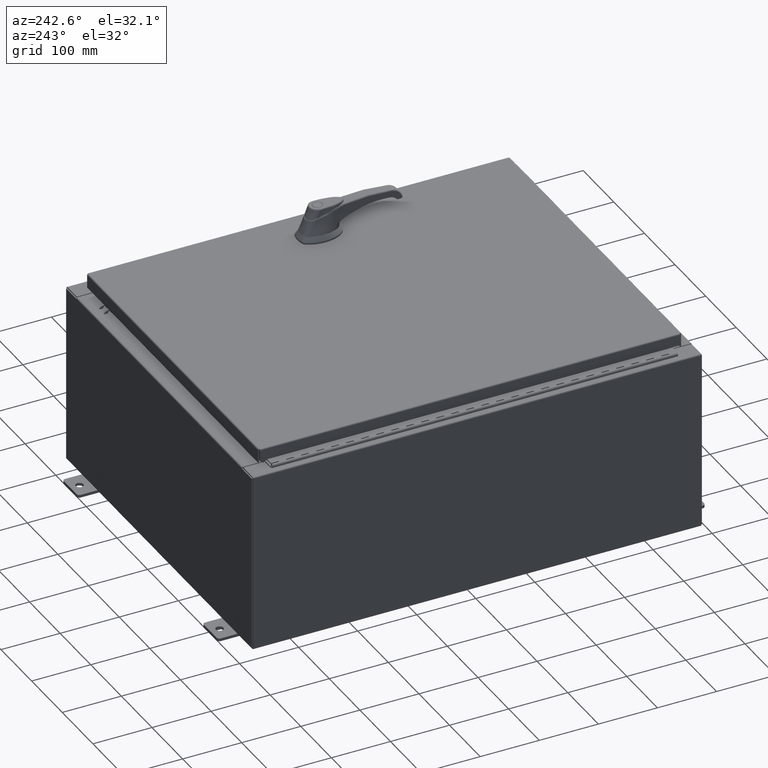
[diagram: clean part render]
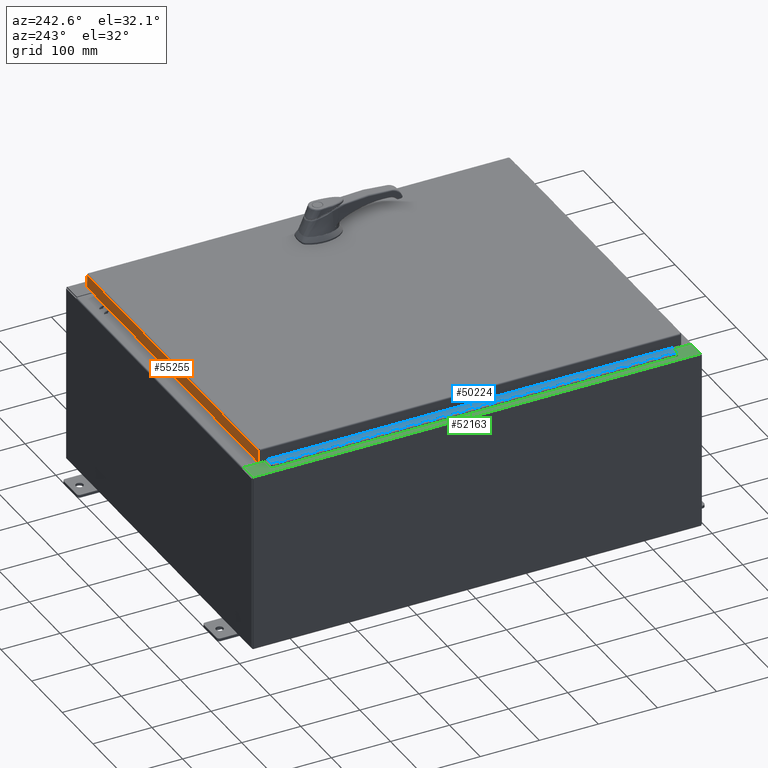
[diagram: same view with three faces highlighted in distinct colors, each labeled with its STEP entity id]
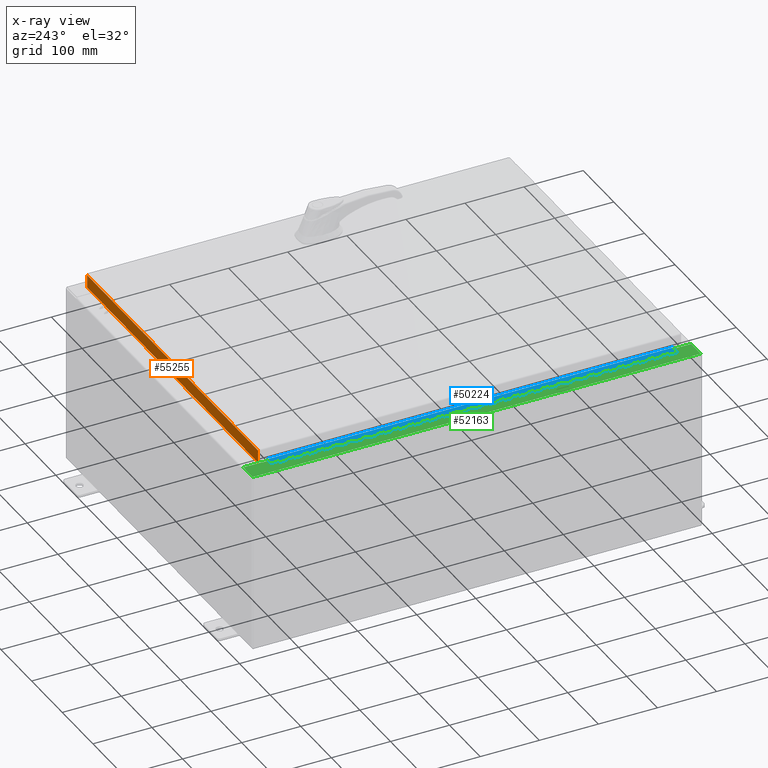
[diagram: x-ray of the same camera — body ghosted, the three highlighted faces saturated]
A machine part, auxiliary view with three faces highlighted in distinct colors.
The next image is the same camera in x-ray (body ghosted, the three faces saturated) — at least one of them is partly hidden behind the body in this view.
Their STEP definitions:

[orange] entity #55255 — the highlighted planar face has unit normal (0, -1, -0).
#2268 = DIRECTION ( 'NONE',  ( 0.0000000000000000000, 2.532419924601858200E-015, -1.000000000000000000 ) ) ;
#7122 = CARTESIAN_POINT ( 'NONE',  ( -10.98915786437626900, 14.09400000000000100, -0.9377000000000025300 ) ) ;
#11589 = VECTOR ( 'NONE', #20675, 39.37007874015748100 ) ;
#12492 = VECTOR ( 'NONE', #23479, 39.37007874015748100 ) ;
#20675 = DIRECTION ( 'NONE',  ( -1.000000000000000000, -3.122488847327583000E-031, -7.817847125977018100E-046 ) ) ;
#21455 = EDGE_CURVE ( 'NONE', #26193, #66134, #84073, .T. ) ;
#23479 = DIRECTION ( 'NONE',  ( 1.000000000000000000, -4.379057701015054300E-047, 1.233005954894504400E-016 ) ) ;
#26193 = VERTEX_POINT ( 'NONE', #112328 ) ;
#28602 = VECTOR ( 'NONE', #95407, 39.37007874015748100 ) ;
#28751 = DIRECTION ( 'NONE',  ( -0.0000000000000000000, 2.532419924601858200E-015, -1.000000000000000000 ) ) ;
#29460 = CARTESIAN_POINT ( 'NONE',  ( -4.400835781423494800E-030, 14.09399999999999900, 3.595274007335016100E-014 ) ) ;
#32263 = EDGE_CURVE ( 'NONE', #66134, #99882, #33959, .T. ) ;
#32689 = CARTESIAN_POINT ( 'NONE',  ( -11.07799999999999900, 14.09400000000000100, -0.9377000000000025300 ) ) ;
#33959 = LINE ( 'NONE', #32689, #12492 ) ;
#37872 = PLANE ( 'NONE',  #105236 ) ;
#41872 = EDGE_CURVE ( 'NONE', #92003, #99882, #77305, .T. ) ;
#47359 = ORIENTED_EDGE ( 'NONE', *, *, #41872, .T. ) ;
#48129 = ORIENTED_EDGE ( 'NONE', *, *, #32263, .F. ) ;
#49833 = EDGE_LOOP ( 'NONE', ( #105583, #47359, #48129, #84851 ) ) ;
#55255 = ADVANCED_FACE ( 'NONE', ( #89240 ), #37872, .F. ) ;
#57100 = DIRECTION ( 'NONE',  ( 3.122488847327582500E-031, -1.000000000000000000, -2.532419924601858200E-015 ) ) ;
#58342 = CARTESIAN_POINT ( 'NONE',  ( 10.98915786437626700, 14.09399999999999900, -0.08770000000000008300 ) ) ;
#60291 = LINE ( 'NONE', #84776, #11589 ) ;
#66134 = VERTEX_POINT ( 'NONE', #7122 ) ;
#77305 = LINE ( 'NONE', #114124, #28602 ) ;
#81212 = VECTOR ( 'NONE', #28751, 39.37007874015748100 ) ;
#83711 = EDGE_CURVE ( 'NONE', #92003, #26193, #60291, .T. ) ;
#84073 = LINE ( 'NONE', #101974, #81212 ) ;
#84776 = CARTESIAN_POINT ( 'NONE',  ( -11.07799999999999900, 14.09399999999999900, -0.08770000000000008300 ) ) ;
#84851 = ORIENTED_EDGE ( 'NONE', *, *, #21455, .F. ) ;
#85711 = CARTESIAN_POINT ( 'NONE',  ( 10.98915786437626700, 14.09400000000000100, -0.9376999999999997600 ) ) ;
#89240 = FACE_OUTER_BOUND ( 'NONE', #49833, .T. ) ;
#92003 = VERTEX_POINT ( 'NONE', #58342 ) ;
#95407 = DIRECTION ( 'NONE',  ( 0.0000000000000000000, 2.532419924601858200E-015, -1.000000000000000000 ) ) ;
#99882 = VERTEX_POINT ( 'NONE', #85711 ) ;
#101974 = CARTESIAN_POINT ( 'NONE',  ( -10.98915786437626900, 14.09399999999999900, -0.07469999999999980800 ) ) ;
#105236 = AXIS2_PLACEMENT_3D ( 'NONE', #29460, #57100, #2268 ) ;
#105583 = ORIENTED_EDGE ( 'NONE', *, *, #83711, .F. ) ;
#112328 = CARTESIAN_POINT ( 'NONE',  ( -10.98915786437626700, 14.09399999999999900, -0.08770000000000008300 ) ) ;
#114124 = CARTESIAN_POINT ( 'NONE',  ( 10.98915786437626900, 14.09399999999999900, 3.595274007335016100E-014 ) ) ;

[blue] entity #50224 — the highlighted planar face has unit normal (-0, -0, 1).
#48 = CARTESIAN_POINT ( 'NONE',  ( -0.6869999999999973900, 0.8004999999999995500, -6.000000000000000900 ) ) ;
#113 = ORIENTED_EDGE ( 'NONE', *, *, #36954, .F. ) ;
#114 = DIRECTION ( 'NONE',  ( 3.389037039080723100E-015, 1.000000000000000000, -0.0000000000000000000 ) ) ;
#134 = ORIENTED_EDGE ( 'NONE', *, *, #45739, .T. ) ;
#576 = LINE ( 'NONE', #97322, #95104 ) ;
#634 = DIRECTION ( 'NONE',  ( 0.0000000000000000000, -0.0000000000000000000, -1.000000000000000000 ) ) ;
#682 = CARTESIAN_POINT ( 'NONE',  ( -0.6869999999999978300, 0.6754999999999996600, -15.50000000000000000 ) ) ;
#888 = VERTEX_POINT ( 'NONE', #59762 ) ;
#901 = VERTEX_POINT ( 'NONE', #118112 ) ;
#1132 = CARTESIAN_POINT ( 'NONE',  ( -0.6869999999999973900, 0.8004999999999995500, -26.50000000000000400 ) ) ;
#1180 = EDGE_CURVE ( 'NONE', #60706, #32109, #111043, .T. ) ;
#1198 = CARTESIAN_POINT ( 'NONE',  ( -0.6869999999999982800, 0.5504999999999997700, -22.50000000000000000 ) ) ;
#1458 = ORIENTED_EDGE ( 'NONE', *, *, #23557, .F. ) ;
#1639 = CARTESIAN_POINT ( 'NONE',  ( -0.6869999999999982800, 0.5504999999999997700, -3.500000000000000000 ) ) ;
#1682 = CARTESIAN_POINT ( 'NONE',  ( -0.6869999999999973900, 0.8004999999999995500, -23.50000000000000000 ) ) ;
#1889 = EDGE_CURVE ( 'NONE', #901, #49849, #116649, .T. ) ;
#2100 = ORIENTED_EDGE ( 'NONE', *, *, #9417, .F. ) ;
#2247 = CARTESIAN_POINT ( 'NONE',  ( -0.6869999999999982800, 0.5504999999999997700, -17.00000000000000000 ) ) ;
#2515 = VECTOR ( 'NONE', #35123, 39.37007874015748100 ) ;
#2766 = ORIENTED_EDGE ( 'NONE', *, *, #104563, .F. ) ;
#2954 = ORIENTED_EDGE ( 'NONE', *, *, #67475, .F. ) ;
#3170 = LINE ( 'NONE', #94140, #27473 ) ;
#3356 = ORIENTED_EDGE ( 'NONE', *, *, #42139, .F. ) ;
#3409 = ORIENTED_EDGE ( 'NONE', *, *, #18773, .F. ) ;
#3438 = CARTESIAN_POINT ( 'NONE',  ( -0.6869999999999973900, 0.8004999999999995500, -5.000000000000000000 ) ) ;
#3605 = DIRECTION ( 'NONE',  ( -3.389037039080723100E-015, -1.000000000000000000, 0.0000000000000000000 ) ) ;
#3665 = CARTESIAN_POINT ( 'NONE',  ( -0.6869999999999978300, 0.6754999999999996600, -10.50000000000000000 ) ) ;
#3880 = DIRECTION ( 'NONE',  ( -3.389037039080723100E-015, -1.000000000000000000, 0.0000000000000000000 ) ) ;
#3983 = CARTESIAN_POINT ( 'NONE',  ( -0.6869999999999982800, 0.5504999999999997700, -20.50000000000000400 ) ) ;
#4024 = DIRECTION ( 'NONE',  ( 0.0000000000000000000, 0.0000000000000000000, 1.000000000000000000 ) ) ;
#4127 = DIRECTION ( 'NONE',  ( -3.389037039080723100E-015, -1.000000000000000000, 0.0000000000000000000 ) ) ;
#4155 = LINE ( 'NONE', #50108, #44250 ) ;
#4259 = LINE ( 'NONE', #35365, #74460 ) ;
#4302 = LINE ( 'NONE', #56563, #74505 ) ;
#4400 = EDGE_CURVE ( 'NONE', #44095, #47236, #14690, .T. ) ;
#4427 = ORIENTED_EDGE ( 'NONE', *, *, #1889, .T. ) ;
#4476 = EDGE_CURVE ( 'NONE', #90768, #92324, #8989, .T. ) ;
#4531 = VECTOR ( 'NONE', #114, 39.37007874015748100 ) ;
#4630 = CARTESIAN_POINT ( 'NONE',  ( -0.6869999999999978300, 0.6754999999999996600, -24.50000000000000000 ) ) ;
#4754 = ORIENTED_EDGE ( 'NONE', *, *, #58517, .F. ) ;
#4835 = EDGE_CURVE ( 'NONE', #109074, #46238, #56203, .T. ) ;
#4839 = VERTEX_POINT ( 'NONE', #63817 ) ;
#5093 = DIRECTION ( 'NONE',  ( 0.0000000000000000000, -0.0000000000000000000, -1.000000000000000000 ) ) ;
#5234 = CARTESIAN_POINT ( 'NONE',  ( -0.6869999999999973900, 0.8004999999999995500, -19.00000000000000000 ) ) ;
#5295 = CARTESIAN_POINT ( 'NONE',  ( -0.6869999999999978300, 0.6754999999999996600, -25.50000000000000400 ) ) ;
#5382 = FACE_OUTER_BOUND ( 'NONE', #63568, .T. ) ;
#5746 = EDGE_CURVE ( 'NONE', #31536, #7902, #6131, .T. ) ;
#5986 = DIRECTION ( 'NONE',  ( 3.389037039080723100E-015, 1.000000000000000000, -0.0000000000000000000 ) ) ;
#6040 = EDGE_CURVE ( 'NONE', #32275, #62693, #18958, .T. ) ;
#6113 = VECTOR ( 'NONE', #14599, 39.37007874015748100 ) ;
#6131 = LINE ( 'NONE', #48, #30441 ) ;
#6169 = ORIENTED_EDGE ( 'NONE', *, *, #74224, .F. ) ;
#6379 = ORIENTED_EDGE ( 'NONE', *, *, #76726, .T. ) ;
#6491 = VERTEX_POINT ( 'NONE', #50290 ) ;
#6540 = VECTOR ( 'NONE', #118051, 39.37007874015748100 ) ;
#6600 = CARTESIAN_POINT ( 'NONE',  ( -0.6869999999999978300, 0.6754999999999996600, -20.00000000000000000 ) ) ;
#6695 = VERTEX_POINT ( 'NONE', #42668 ) ;
#6820 = LINE ( 'NONE', #117362, #74151 ) ;
#7022 = ORIENTED_EDGE ( 'NONE', *, *, #80272, .F. ) ;
#7246 = CARTESIAN_POINT ( 'NONE',  ( -0.6869999999999998300, 0.07549999999999991400, 0.0000000000000000000 ) ) ;
#7278 = CARTESIAN_POINT ( 'NONE',  ( -0.6869999999999973900, 0.8004999999999995500, -4.500000000000000000 ) ) ;
#7484 = EDGE_CURVE ( 'NONE', #24776, #81180, #78921, .T. ) ;
#7902 = VERTEX_POINT ( 'NONE', #13837 ) ;
#7927 = CARTESIAN_POINT ( 'NONE',  ( -0.6869999999999973900, 0.8004999999999995500, -14.99999999999999800 ) ) ;
#7982 = CARTESIAN_POINT ( 'NONE',  ( -0.6869999999999973900, 0.8004999999999995500, -16.00000000000000000 ) ) ;
#8225 = CARTESIAN_POINT ( 'NONE',  ( -0.6869999999999982800, 0.5504999999999997700, -22.50000000000000000 ) ) ;
#8262 = LINE ( 'NONE', #102948, #68442 ) ;
#8314 = LINE ( 'NONE', #37528, #84233 ) ;
#8457 = VERTEX_POINT ( 'NONE', #15335 ) ;
#8721 = ORIENTED_EDGE ( 'NONE', *, *, #103528, .F. ) ;
#8764 = ORIENTED_EDGE ( 'NONE', *, *, #54064, .F. ) ;
#8790 = ORIENTED_EDGE ( 'NONE', *, *, #105479, .F. ) ;
#8823 = VECTOR ( 'NONE', #110755, 39.37007874015748100 ) ;
#8989 = LINE ( 'NONE', #69464, #6113 ) ;
#9104 = DIRECTION ( 'NONE',  ( 0.0000000000000000000, -0.0000000000000000000, -1.000000000000000000 ) ) ;
#9408 = CARTESIAN_POINT ( 'NONE',  ( -0.6869999999999982800, 0.5504999999999997700, -11.50000000000000000 ) ) ;
#9417 = EDGE_CURVE ( 'NONE', #37997, #101171, #98431, .T. ) ;
#9553 = VECTOR ( 'NONE', #77424, 39.37007874015748100 ) ;
#9562 = ORIENTED_EDGE ( 'NONE', *, *, #117754, .F. ) ;
#9588 = ORIENTED_EDGE ( 'NONE', *, *, #15154, .F. ) ;
#9714 = VERTEX_POINT ( 'NONE', #61540 ) ;
#9852 = VECTOR ( 'NONE', #4127, 39.37007874015748100 ) ;
#9868 = VERTEX_POINT ( 'NONE', #17052 ) ;
#10048 = EDGE_CURVE ( 'NONE', #114859, #40638, #39634, .T. ) ;
#10118 = EDGE_CURVE ( 'NONE', #25285, #91884, #112646, .T. ) ;
#10137 = ORIENTED_EDGE ( 'NONE', *, *, #4400, .F. ) ;
#10247 = CARTESIAN_POINT ( 'NONE',  ( -0.6869999999999978300, 0.6754999999999996600, -27.00000000000000000 ) ) ;
#10533 = CARTESIAN_POINT ( 'NONE',  ( -0.6869999999999978300, 0.6754999999999996600, -27.00000000000000000 ) ) ;
#10606 = ORIENTED_EDGE ( 'NONE', *, *, #33348, .T. ) ;
#10639 = CARTESIAN_POINT ( 'NONE',  ( -0.6869999999999982800, 0.5504999999999997700, -23.00000000000000000 ) ) ;
#10696 = CARTESIAN_POINT ( 'NONE',  ( -0.6869999999999982800, 0.5504999999999997700, -26.50000000000000400 ) ) ;
#10699 = DIRECTION ( 'NONE',  ( -3.389037039080723100E-015, -1.000000000000000000, 0.0000000000000000000 ) ) ;
#10770 = LINE ( 'NONE', #118284, #59446 ) ;
#10838 = DIRECTION ( 'NONE',  ( 3.389037039080723100E-015, 1.000000000000000000, -0.0000000000000000000 ) ) ;
#11113 = CARTESIAN_POINT ( 'NONE',  ( -0.6869999999999982800, 0.5504999999999997700, -12.99999999999999800 ) ) ;
#11681 = LINE ( 'NONE', #92389, #8823 ) ;
#11857 = LINE ( 'NONE', #65591, #103470 ) ;
#11878 = VECTOR ( 'NONE', #17879, 39.37007874015748100 ) ;
#11942 = VECTOR ( 'NONE', #46464, 39.37007874015748100 ) ;
#12191 = EDGE_CURVE ( 'NONE', #71530, #92408, #83760, .T. ) ;
#12417 = DIRECTION ( 'NONE',  ( 3.389037039080723100E-015, 1.000000000000000000, -0.0000000000000000000 ) ) ;
#12652 = VERTEX_POINT ( 'NONE', #102986 ) ;
#12684 = VECTOR ( 'NONE', #70083, 39.37007874015748100 ) ;
#12824 = LINE ( 'NONE', #57535, #18557 ) ;
#12920 = EDGE_CURVE ( 'NONE', #62693, #22412, #62158, .T. ) ;
#13054 = CARTESIAN_POINT ( 'NONE',  ( -0.6869999999999982800, 0.5504999999999997700, -8.500000000000000000 ) ) ;
#13101 = LINE ( 'NONE', #65949, #80419 ) ;
#13210 = LINE ( 'NONE', #100651, #37580 ) ;
#13251 = ORIENTED_EDGE ( 'NONE', *, *, #42557, .F. ) ;
#13427 = DIRECTION ( 'NONE',  ( 0.0000000000000000000, -0.0000000000000000000, -1.000000000000000000 ) ) ;
#13606 = ORIENTED_EDGE ( 'NONE', *, *, #88274, .F. ) ;
#13619 = ORIENTED_EDGE ( 'NONE', *, *, #98054, .F. ) ;
#13778 = VECTOR ( 'NONE', #70991, 39.37007874015748100 ) ;
#13836 = VECTOR ( 'NONE', #64301, 39.37007874015748100 ) ;
#13837 = CARTESIAN_POINT ( 'NONE',  ( -0.6869999999999978300, 0.6754999999999996600, -6.000000000000000900 ) ) ;
#13949 = LINE ( 'NONE', #33341, #38335 ) ;
#14043 = VECTOR ( 'NONE', #73706, 39.37007874015748100 ) ;
#14192 = EDGE_CURVE ( 'NONE', #111337, #18891, #11857, .T. ) ;
#14230 = VECTOR ( 'NONE', #62918, 39.37007874015748100 ) ;
#14282 = LINE ( 'NONE', #99306, #63029 ) ;
#14538 = CARTESIAN_POINT ( 'NONE',  ( -0.6869999999999978300, 0.6754999999999996600, -27.00000000000000000 ) ) ;
#14599 = DIRECTION ( 'NONE',  ( 0.0000000000000000000, 0.0000000000000000000, 1.000000000000000000 ) ) ;
#14610 = EDGE_CURVE ( 'NONE', #84302, #18891, #13210, .T. ) ;
#14690 = LINE ( 'NONE', #58691, #82061 ) ;
#14902 = LINE ( 'NONE', #20780, #60753 ) ;
#14909 = CARTESIAN_POINT ( 'NONE',  ( -0.6869999999999978300, 0.6754999999999996600, -27.00000000000000000 ) ) ;
#14989 = LINE ( 'NONE', #65522, #60844 ) ;
#15112 = VECTOR ( 'NONE', #39007, 39.37007874015748100 ) ;
#15149 = VERTEX_POINT ( 'NONE', #69344 ) ;
#15154 = EDGE_CURVE ( 'NONE', #60706, #15979, #57572, .T. ) ;
#15225 = DIRECTION ( 'NONE',  ( 3.389037039080723100E-015, 1.000000000000000000, -0.0000000000000000000 ) ) ;
#15237 = LINE ( 'NONE', #64043, #61119 ) ;
#15335 = CARTESIAN_POINT ( 'NONE',  ( -0.6869999999999982800, 0.5504999999999997700, -21.00000000000000000 ) ) ;
#15418 = LINE ( 'NONE', #27426, #107074 ) ;
#15486 = EDGE_CURVE ( 'NONE', #25880, #92408, #61828, .T. ) ;
#15563 = CARTESIAN_POINT ( 'NONE',  ( -0.6869999999999973900, 0.8004999999999995500, -11.99999999999999800 ) ) ;
#15605 = VECTOR ( 'NONE', #65558, 39.37007874015748100 ) ;
#15630 = ORIENTED_EDGE ( 'NONE', *, *, #117189, .F. ) ;
#15681 = EDGE_CURVE ( 'NONE', #9868, #24776, #99032, .T. ) ;
#15709 = EDGE_CURVE ( 'NONE', #36835, #118327, #116335, .T. ) ;
#15830 = VERTEX_POINT ( 'NONE', #62390 ) ;
#15979 = VERTEX_POINT ( 'NONE', #105072 ) ;
#15995 = ORIENTED_EDGE ( 'NONE', *, *, #118304, .F. ) ;
#16016 = VECTOR ( 'NONE', #54553, 39.37007874015748100 ) ;
#16055 = LINE ( 'NONE', #100122, #83416 ) ;
#16203 = VECTOR ( 'NONE', #83581, 39.37007874015748100 ) ;
#16301 = LINE ( 'NONE', #66871, #86520 ) ;
#16513 = CARTESIAN_POINT ( 'NONE',  ( -0.6869999999999978300, 0.6754999999999996600, -23.50000000000000000 ) ) ;
#16601 = LINE ( 'NONE', #94528, #19466 ) ;
#16710 = LINE ( 'NONE', #55115, #13836 ) ;
#16914 = EDGE_CURVE ( 'NONE', #99764, #114299, #77564, .T. ) ;
#16961 = CARTESIAN_POINT ( 'NONE',  ( -0.6869999999999982800, 0.5504999999999997700, -24.99999999999999600 ) ) ;
#17052 = CARTESIAN_POINT ( 'NONE',  ( -0.6869999999999978300, 0.6754999999999996600, -16.50000000000000000 ) ) ;
#17054 = VECTOR ( 'NONE', #108640, 39.37007874015748100 ) ;
#17391 = DIRECTION ( 'NONE',  ( 0.0000000000000000000, -0.0000000000000000000, -1.000000000000000000 ) ) ;
#17469 = DIRECTION ( 'NONE',  ( 0.0000000000000000000, 0.0000000000000000000, 1.000000000000000000 ) ) ;
#17508 = DIRECTION ( 'NONE',  ( 3.389037039080723100E-015, 1.000000000000000000, -0.0000000000000000000 ) ) ;
#17656 = CARTESIAN_POINT ( 'NONE',  ( -0.6869999999999998300, 0.07549999999999991400, -27.00000000000000000 ) ) ;
#17740 = VECTOR ( 'NONE', #25252, 39.37007874015748100 ) ;
#17879 = DIRECTION ( 'NONE',  ( 0.0000000000000000000, -0.0000000000000000000, -1.000000000000000000 ) ) ;
#18352 = ORIENTED_EDGE ( 'NONE', *, *, #15709, .F. ) ;
#18557 = VECTOR ( 'NONE', #112308, 39.37007874015748100 ) ;
#18773 = EDGE_CURVE ( 'NONE', #88454, #90372, #87339, .T. ) ;
#18847 = VERTEX_POINT ( 'NONE', #90772 ) ;
#18891 = VERTEX_POINT ( 'NONE', #109549 ) ;
#18958 = LINE ( 'NONE', #107593, #86300 ) ;
#18965 = VECTOR ( 'NONE', #3605, 39.37007874015748100 ) ;
#18969 = VECTOR ( 'NONE', #5093, 39.37007874015748100 ) ;
#19049 = VECTOR ( 'NONE', #97651, 39.37007874015748100 ) ;
#19293 = VERTEX_POINT ( 'NONE', #4630 ) ;
#19385 = VECTOR ( 'NONE', #83981, 39.37007874015748100 ) ;
#19466 = VECTOR ( 'NONE', #39680, 39.37007874015748100 ) ;
#19542 = CARTESIAN_POINT ( 'NONE',  ( -0.6869999999999973900, 0.8004999999999995500, -17.50000000000000000 ) ) ;
#19562 = LINE ( 'NONE', #5234, #68336 ) ;
#19683 = LINE ( 'NONE', #14538, #87037 ) ;
#19816 = CARTESIAN_POINT ( 'NONE',  ( -0.6869999999999973900, 0.8004999999999995500, -2.999999999999999600 ) ) ;
#19882 = CARTESIAN_POINT ( 'NONE',  ( -0.6869999999999982800, 0.5504999999999997700, -24.50000000000000000 ) ) ;
#20355 = CARTESIAN_POINT ( 'NONE',  ( -0.6869999999999978300, 0.6754999999999996600, -6.499999999999999100 ) ) ;
#20582 = VERTEX_POINT ( 'NONE', #10639 ) ;
#20678 = CARTESIAN_POINT ( 'NONE',  ( -0.6869999999999978300, 0.6754999999999996600, -22.00000000000000000 ) ) ;
#20780 = CARTESIAN_POINT ( 'NONE',  ( -0.6869999999999982800, 0.5504999999999997700, -9.500000000000000000 ) ) ;
#21846 = CARTESIAN_POINT ( 'NONE',  ( -0.6869999999999973900, 0.8004999999999995500, -7.499999999999999100 ) ) ;
#21965 = CARTESIAN_POINT ( 'NONE',  ( -0.6869999999999973900, 0.8004999999999995500, -14.49999999999999800 ) ) ;
#22296 = CARTESIAN_POINT ( 'NONE',  ( -0.6869999999999978300, 0.6754999999999996600, -11.00000000000000000 ) ) ;
#22412 = VERTEX_POINT ( 'NONE', #108681 ) ;
#22665 = VECTOR ( 'NONE', #31559, 39.37007874015748100 ) ;
#22693 = EDGE_CURVE ( 'NONE', #91790, #12652, #36636, .T. ) ;
#22764 = EDGE_CURVE ( 'NONE', #61667, #67951, #106756, .T. ) ;
#22821 = ORIENTED_EDGE ( 'NONE', *, *, #66899, .F. ) ;
#22977 = DIRECTION ( 'NONE',  ( -3.389037039080723100E-015, -1.000000000000000000, 0.0000000000000000000 ) ) ;
#23085 = VERTEX_POINT ( 'NONE', #71772 ) ;
#23356 = CARTESIAN_POINT ( 'NONE',  ( -0.6869999999999998300, 0.07549999999999991400, -27.00000000000000000 ) ) ;
#23404 = CARTESIAN_POINT ( 'NONE',  ( -0.6869999999999978300, 0.6754999999999996600, -2.500000000000000000 ) ) ;
#23557 = EDGE_CURVE ( 'NONE', #81180, #67951, #45139, .T. ) ;
#24084 = CARTESIAN_POINT ( 'NONE',  ( -0.6869999999999973900, 0.8004999999999995500, -11.50000000000000000 ) ) ;
#24225 = LINE ( 'NONE', #93946, #58598 ) ;
#24305 = VECTOR ( 'NONE', #12417, 39.37007874015748100 ) ;
#24574 = VECTOR ( 'NONE', #103280, 39.37007874015748100 ) ;
#24739 = EDGE_CURVE ( 'NONE', #45885, #94310, #103664, .T. ) ;
#24776 = VERTEX_POINT ( 'NONE', #48958 ) ;
#25252 = DIRECTION ( 'NONE',  ( -3.389037039080723100E-015, -1.000000000000000000, 0.0000000000000000000 ) ) ;
#25285 = VERTEX_POINT ( 'NONE', #26048 ) ;
#25356 = VECTOR ( 'NONE', #66554, 39.37007874015748100 ) ;
#25470 = EDGE_CURVE ( 'NONE', #102525, #6491, #84992, .T. ) ;
#25511 = LINE ( 'NONE', #14909, #71382 ) ;
#25849 = LINE ( 'NONE', #36311, #96052 ) ;
#25880 = VERTEX_POINT ( 'NONE', #70453 ) ;
#26048 = CARTESIAN_POINT ( 'NONE',  ( -0.6869999999999978300, 0.6754999999999996600, -22.50000000000000000 ) ) ;
#26118 = DIRECTION ( 'NONE',  ( -3.389037039080723100E-015, -1.000000000000000000, 0.0000000000000000000 ) ) ;
#26219 = CARTESIAN_POINT ( 'NONE',  ( -0.6869999999999973900, 0.8004999999999995500, -12.99999999999999800 ) ) ;
#26674 = EDGE_CURVE ( 'NONE', #15979, #92466, #67675, .T. ) ;
#26682 = CARTESIAN_POINT ( 'NONE',  ( -0.6869999999999982800, 0.5504999999999997700, -25.50000000000000400 ) ) ;
#26817 = LINE ( 'NONE', #34723, #2515 ) ;
#26982 = CARTESIAN_POINT ( 'NONE',  ( -0.6869999999999973900, 0.8004999999999995500, -3.500000000000000000 ) ) ;
#27255 = DIRECTION ( 'NONE',  ( -3.389037039080723100E-015, -1.000000000000000000, 0.0000000000000000000 ) ) ;
#27426 = CARTESIAN_POINT ( 'NONE',  ( -0.6869999999999973900, 0.8004999999999995500, -9.500000000000000000 ) ) ;
#27468 = VERTEX_POINT ( 'NONE', #118709 ) ;
#27473 = VECTOR ( 'NONE', #48504, 39.37007874015748100 ) ;
#27505 = VECTOR ( 'NONE', #35447, 39.37007874015748100 ) ;
#27524 = CARTESIAN_POINT ( 'NONE',  ( -0.6869999999999973900, 0.8004999999999995500, -17.00000000000000000 ) ) ;
#27700 = VECTOR ( 'NONE', #5986, 39.37007874015748100 ) ;
#27961 = CARTESIAN_POINT ( 'NONE',  ( -0.6869999999999978300, 0.6754999999999996600, -27.00000000000000000 ) ) ;
#28279 = CARTESIAN_POINT ( 'NONE',  ( -0.6869999999999982800, 0.5504999999999997700, -19.00000000000000000 ) ) ;
#28722 = CARTESIAN_POINT ( 'NONE',  ( -0.6869999999999978300, 0.6754999999999996600, -17.00000000000000000 ) ) ;
#29055 = DIRECTION ( 'NONE',  ( 3.389037039080723100E-015, 1.000000000000000000, -0.0000000000000000000 ) ) ;
#29093 = CARTESIAN_POINT ( 'NONE',  ( -0.6869999999999973900, 0.8004999999999995500, -10.50000000000000000 ) ) ;
#29095 = VECTOR ( 'NONE', #3880, 39.37007874015748100 ) ;
#29099 = VERTEX_POINT ( 'NONE', #23356 ) ;
#29115 = CARTESIAN_POINT ( 'NONE',  ( -0.6869999999999978300, 0.6754999999999996600, -27.00000000000000000 ) ) ;
#29173 = VERTEX_POINT ( 'NONE', #69825 ) ;
#29352 = EDGE_CURVE ( 'NONE', #8457, #6695, #4259, .T. ) ;
#30023 = ORIENTED_EDGE ( 'NONE', *, *, #6040, .F. ) ;
#30227 = VECTOR ( 'NONE', #59633, 39.37007874015748100 ) ;
#30282 = ORIENTED_EDGE ( 'NONE', *, *, #32517, .F. ) ;
#30316 = EDGE_CURVE ( 'NONE', #29173, #61111, #47123, .T. ) ;
#30365 = LINE ( 'NONE', #26219, #27505 ) ;
#30433 = DIRECTION ( 'NONE',  ( 0.0000000000000000000, 0.0000000000000000000, 1.000000000000000000 ) ) ;
#30441 = VECTOR ( 'NONE', #91290, 39.37007874015748100 ) ;
#30554 = VECTOR ( 'NONE', #104788, 39.37007874015748100 ) ;
#30618 = VECTOR ( 'NONE', #103360, 39.37007874015748100 ) ;
#31046 = ORIENTED_EDGE ( 'NONE', *, *, #30316, .F. ) ;
#31460 = EDGE_CURVE ( 'NONE', #888, #74537, #81360, .T. ) ;
#31529 = CARTESIAN_POINT ( 'NONE',  ( -0.6869999999999973900, 0.8004999999999995500, -24.99999999999999600 ) ) ;
#31536 = VERTEX_POINT ( 'NONE', #60434 ) ;
#31559 = DIRECTION ( 'NONE',  ( 0.0000000000000000000, -0.0000000000000000000, -1.000000000000000000 ) ) ;
#32089 = DIRECTION ( 'NONE',  ( 0.0000000000000000000, 0.0000000000000000000, 1.000000000000000000 ) ) ;
#32109 = VERTEX_POINT ( 'NONE', #22296 ) ;
#32275 = VERTEX_POINT ( 'NONE', #51138 ) ;
#32386 = VERTEX_POINT ( 'NONE', #35490 ) ;
#32517 = EDGE_CURVE ( 'NONE', #81875, #32386, #16710, .T. ) ;
#32580 = VECTOR ( 'NONE', #4024, 39.37007874015748100 ) ;
#33341 = CARTESIAN_POINT ( 'NONE',  ( -0.6869999999999973900, 0.8004999999999995500, -8.500000000000000000 ) ) ;
#33348 = EDGE_CURVE ( 'NONE', #98306, #90372, #16601, .T. ) ;
#33687 = ORIENTED_EDGE ( 'NONE', *, *, #111991, .F. ) ;
#33727 = VECTOR ( 'NONE', #112600, 39.37007874015748100 ) ;
#34633 = CARTESIAN_POINT ( 'NONE',  ( -0.6869999999999978300, 0.6754999999999996600, -9.500000000000000000 ) ) ;
#34723 = CARTESIAN_POINT ( 'NONE',  ( -0.6869999999999982800, 0.5504999999999997700, -6.499999999999999100 ) ) ;
#35042 = VECTOR ( 'NONE', #114207, 39.37007874015748100 ) ;
#35123 = DIRECTION ( 'NONE',  ( 0.0000000000000000000, -0.0000000000000000000, -1.000000000000000000 ) ) ;
#35217 = VERTEX_POINT ( 'NONE', #96251 ) ;
#35254 = DIRECTION ( 'NONE',  ( 0.0000000000000000000, -0.0000000000000000000, -1.000000000000000000 ) ) ;
#35360 = CARTESIAN_POINT ( 'NONE',  ( -0.6869999999999978300, 0.6754999999999996600, -21.50000000000000400 ) ) ;
#35365 = CARTESIAN_POINT ( 'NONE',  ( -0.6869999999999973900, 0.8004999999999995500, -21.00000000000000000 ) ) ;
#35407 = ORIENTED_EDGE ( 'NONE', *, *, #63331, .T. ) ;
#35447 = DIRECTION ( 'NONE',  ( 3.389037039080723100E-015, 1.000000000000000000, -0.0000000000000000000 ) ) ;
#35490 = CARTESIAN_POINT ( 'NONE',  ( -0.6869999999999982800, 0.5504999999999997700, -6.499999999999999100 ) ) ;
#35633 = CARTESIAN_POINT ( 'NONE',  ( -0.6869999999999978300, 0.6754999999999996600, -27.00000000000000000 ) ) ;
#35956 = VERTEX_POINT ( 'NONE', #34633 ) ;
#35970 = LINE ( 'NONE', #7982, #81830 ) ;
#35973 = CARTESIAN_POINT ( 'NONE',  ( -0.6869999999999978300, 0.6754999999999996600, -11.99999999999999800 ) ) ;
#36191 = CARTESIAN_POINT ( 'NONE',  ( -0.6869999999999973900, 0.8004999999999995500, -12.49999999999999800 ) ) ;
#36311 = CARTESIAN_POINT ( 'NONE',  ( -0.6869999999999982800, 0.5504999999999997700, -15.50000000000000000 ) ) ;
#36435 = VECTOR ( 'NONE', #46244, 39.37007874015748100 ) ;
#36526 = LINE ( 'NONE', #19542, #106650 ) ;
#36629 = DIRECTION ( 'NONE',  ( 0.0000000000000000000, 0.0000000000000000000, 1.000000000000000000 ) ) ;
#36636 = LINE ( 'NONE', #93849, #15112 ) ;
#36663 = DIRECTION ( 'NONE',  ( -3.389037039080723100E-015, -1.000000000000000000, 0.0000000000000000000 ) ) ;
#36714 = CARTESIAN_POINT ( 'NONE',  ( -0.6869999999999978300, 0.6754999999999996600, -12.49999999999999800 ) ) ;
#36835 = VERTEX_POINT ( 'NONE', #45707 ) ;
#36954 = EDGE_CURVE ( 'NONE', #74566, #102933, #45044, .T. ) ;
#37046 = LINE ( 'NONE', #42446, #12684 ) ;
#37062 = EDGE_CURVE ( 'NONE', #18847, #84263, #14902, .T. ) ;
#37528 = CARTESIAN_POINT ( 'NONE',  ( -0.6869999999999982800, 0.5504999999999997700, -13.50000000000000000 ) ) ;
#37580 = VECTOR ( 'NONE', #36629, 39.37007874015748100 ) ;
#37716 = LINE ( 'NONE', #1132, #16203 ) ;
#37804 = VECTOR ( 'NONE', #29055, 39.37007874015748100 ) ;
#37997 = VERTEX_POINT ( 'NONE', #5295 ) ;
#38021 = VECTOR ( 'NONE', #52208, 39.37007874015748100 ) ;
#38075 = DIRECTION ( 'NONE',  ( 3.389037039080723100E-015, 1.000000000000000000, -0.0000000000000000000 ) ) ;
#38128 = DIRECTION ( 'NONE',  ( 0.0000000000000000000, 0.0000000000000000000, 1.000000000000000000 ) ) ;
#38130 = DIRECTION ( 'NONE',  ( -3.389037039080723100E-015, -1.000000000000000000, 0.0000000000000000000 ) ) ;
#38272 = EDGE_CURVE ( 'NONE', #92466, #106466, #64925, .T. ) ;
#38335 = VECTOR ( 'NONE', #88205, 39.37007874015748100 ) ;
#38742 = VERTEX_POINT ( 'NONE', #87126 ) ;
#38932 = DIRECTION ( 'NONE',  ( 0.0000000000000000000, -0.0000000000000000000, -1.000000000000000000 ) ) ;
#38957 = CARTESIAN_POINT ( 'NONE',  ( -0.6869999999999982800, 0.5504999999999997700, -1.499999999999999800 ) ) ;
#39007 = DIRECTION ( 'NONE',  ( -3.389037039080723100E-015, -1.000000000000000000, 0.0000000000000000000 ) ) ;
#39035 = ORIENTED_EDGE ( 'NONE', *, *, #37062, .F. ) ;
#39108 = ORIENTED_EDGE ( 'NONE', *, *, #41913, .T. ) ;
#39186 = EDGE_CURVE ( 'NONE', #25285, #117416, #16055, .T. ) ;
#39418 = VECTOR ( 'NONE', #56519, 39.37007874015748100 ) ;
#39480 = ORIENTED_EDGE ( 'NONE', *, *, #12920, .F. ) ;
#39494 = CARTESIAN_POINT ( 'NONE',  ( -0.6869999999999982800, 0.5504999999999997700, -1.499999999999999800 ) ) ;
#39634 = LINE ( 'NONE', #10247, #64002 ) ;
#39664 = CARTESIAN_POINT ( 'NONE',  ( -0.6869999999999978300, 0.6754999999999996600, -27.00000000000000000 ) ) ;
#39680 = DIRECTION ( 'NONE',  ( 0.0000000000000000000, 0.0000000000000000000, 1.000000000000000000 ) ) ;
#39782 = VECTOR ( 'NONE', #70503, 39.37007874015748100 ) ;
#39972 = CARTESIAN_POINT ( 'NONE',  ( -0.6869999999999982800, 0.5504999999999997700, -23.50000000000000000 ) ) ;
#39992 = LINE ( 'NONE', #10696, #15605 ) ;
#40029 = DIRECTION ( 'NONE',  ( -3.389037039080723100E-015, -1.000000000000000000, 0.0000000000000000000 ) ) ;
#40070 = EDGE_CURVE ( 'NONE', #115180, #44095, #61818, .T. ) ;
#40086 = EDGE_CURVE ( 'NONE', #47236, #32109, #13101, .T. ) ;
#40427 = CARTESIAN_POINT ( 'NONE',  ( -0.6869999999999973900, 0.8004999999999995500, -15.50000000000000000 ) ) ;
#40429 = VECTOR ( 'NONE', #17391, 39.37007874015748100 ) ;
#40638 = VERTEX_POINT ( 'NONE', #48821 ) ;
#40756 = DIRECTION ( 'NONE',  ( 3.389037039080723100E-015, 1.000000000000000000, -0.0000000000000000000 ) ) ;
#40760 = VECTOR ( 'NONE', #40756, 39.37007874015748100 ) ;
#41472 = VERTEX_POINT ( 'NONE', #88293 ) ;
#41898 = CARTESIAN_POINT ( 'NONE',  ( -0.6869999999999978300, 0.6754999999999996600, -14.00000000000000000 ) ) ;
#41913 = EDGE_CURVE ( 'NONE', #91790, #15149, #101642, .T. ) ;
#42055 = ORIENTED_EDGE ( 'NONE', *, *, #10118, .T. ) ;
#42085 = ORIENTED_EDGE ( 'NONE', *, *, #42897, .F. ) ;
#42124 = DIRECTION ( 'NONE',  ( -3.389037039080723100E-015, -1.000000000000000000, 0.0000000000000000000 ) ) ;
#42139 = EDGE_CURVE ( 'NONE', #901, #89862, #62972, .T. ) ;
#42446 = CARTESIAN_POINT ( 'NONE',  ( -0.6869999999999973900, 0.8004999999999995500, -23.99999999999999600 ) ) ;
#42483 = VECTOR ( 'NONE', #118028, 39.37007874015748100 ) ;
#42557 = EDGE_CURVE ( 'NONE', #27468, #81974, #39992, .T. ) ;
#42562 = DIRECTION ( 'NONE',  ( 0.0000000000000000000, 0.0000000000000000000, 1.000000000000000000 ) ) ;
#42591 = CARTESIAN_POINT ( 'NONE',  ( -0.6869999999999982800, 0.5504999999999997700, -14.49999999999999800 ) ) ;
#42668 = CARTESIAN_POINT ( 'NONE',  ( -0.6869999999999978300, 0.6754999999999996600, -21.00000000000000000 ) ) ;
#42691 = EDGE_CURVE ( 'NONE', #80412, #15149, #24225, .T. ) ;
#42897 = EDGE_CURVE ( 'NONE', #53021, #107963, #4155, .T. ) ;
#43263 = VERTEX_POINT ( 'NONE', #1639 ) ;
#43282 = LINE ( 'NONE', #17656, #16016 ) ;
#43927 = VERTEX_POINT ( 'NONE', #108764 ) ;
#44040 = CARTESIAN_POINT ( 'NONE',  ( -0.6869999999999978300, 0.6754999999999996600, -3.500000000000000000 ) ) ;
#44069 = EDGE_CURVE ( 'NONE', #101483, #9714, #8314, .T. ) ;
#44095 = VERTEX_POINT ( 'NONE', #83188 ) ;
#44235 = VECTOR ( 'NONE', #68902, 39.37007874015748100 ) ;
#44250 = VECTOR ( 'NONE', #77705, 39.37007874015748100 ) ;
#44296 = ORIENTED_EDGE ( 'NONE', *, *, #44069, .F. ) ;
#44309 = LINE ( 'NONE', #109037, #17054 ) ;
#44448 = CARTESIAN_POINT ( 'NONE',  ( -0.6869999999999978300, 0.6754999999999996600, -1.499999999999999800 ) ) ;
#44505 = CARTESIAN_POINT ( 'NONE',  ( -0.6869999999999973900, 0.8004999999999995500, -20.50000000000000400 ) ) ;
#44551 = CARTESIAN_POINT ( 'NONE',  ( -0.6870000000000022800, -0.6245000000000003900, -27.00000000000000000 ) ) ;
#44599 = EDGE_CURVE ( 'NONE', #101926, #45286, #50487, .T. ) ;
#45044 = LINE ( 'NONE', #56489, #112287 ) ;
#45139 = LINE ( 'NONE', #27524, #112379 ) ;
#45286 = VERTEX_POINT ( 'NONE', #89312 ) ;
#45418 = DIRECTION ( 'NONE',  ( -3.389037039080723100E-015, -1.000000000000000000, 0.0000000000000000000 ) ) ;
#45519 = VERTEX_POINT ( 'NONE', #103207 ) ;
#45601 = VERTEX_POINT ( 'NONE', #97197 ) ;
#45707 = CARTESIAN_POINT ( 'NONE',  ( -0.6869999999999978300, 0.6754999999999996600, -14.49999999999999800 ) ) ;
#45739 = EDGE_CURVE ( 'NONE', #56590, #22412, #11681, .T. ) ;
#45789 = CARTESIAN_POINT ( 'NONE',  ( -0.6869999999999978300, 0.6754999999999996600, -4.000000000000000000 ) ) ;
#45803 = ORIENTED_EDGE ( 'NONE', *, *, #93962, .T. ) ;
#45885 = VERTEX_POINT ( 'NONE', #39494 ) ;
#46238 = VERTEX_POINT ( 'NONE', #90267 ) ;
#46244 = DIRECTION ( 'NONE',  ( 0.0000000000000000000, -0.0000000000000000000, -1.000000000000000000 ) ) ;
#46464 = DIRECTION ( 'NONE',  ( 3.389037039080723100E-015, 1.000000000000000000, -0.0000000000000000000 ) ) ;
#46652 = LINE ( 'NONE', #36191, #95334 ) ;
#46665 = LINE ( 'NONE', #73603, #116767 ) ;
#46672 = VECTOR ( 'NONE', #72276, 39.37007874015748100 ) ;
#46754 = ORIENTED_EDGE ( 'NONE', *, *, #84774, .F. ) ;
#47088 = LINE ( 'NONE', #3983, #22665 ) ;
#47123 = LINE ( 'NONE', #59684, #44235 ) ;
#47199 = LINE ( 'NONE', #117930, #93016 ) ;
#47236 = VERTEX_POINT ( 'NONE', #63849 ) ;
#47674 = DIRECTION ( 'NONE',  ( 0.0000000000000000000, 0.0000000000000000000, 1.000000000000000000 ) ) ;
#47779 = CARTESIAN_POINT ( 'NONE',  ( -0.6869999999999978300, 0.6754999999999996600, -11.50000000000000000 ) ) ;
#48162 = ORIENTED_EDGE ( 'NONE', *, *, #72890, .F. ) ;
#48443 = DIRECTION ( 'NONE',  ( 0.0000000000000000000, 0.0000000000000000000, 1.000000000000000000 ) ) ;
#48504 = DIRECTION ( 'NONE',  ( 0.0000000000000000000, -0.0000000000000000000, -1.000000000000000000 ) ) ;
#48670 = ORIENTED_EDGE ( 'NONE', *, *, #24739, .F. ) ;
#48821 = CARTESIAN_POINT ( 'NONE',  ( -0.6869999999999978300, 0.6754999999999996600, -23.00000000000000000 ) ) ;
#48958 = CARTESIAN_POINT ( 'NONE',  ( -0.6869999999999982800, 0.5504999999999997700, -16.50000000000000000 ) ) ;
#49028 = EDGE_CURVE ( 'NONE', #89862, #8457, #47088, .T. ) ;
#49182 = CARTESIAN_POINT ( 'NONE',  ( -0.6869999999999982800, 0.5504999999999997700, -4.000000000000000000 ) ) ;
#49206 = LINE ( 'NONE', #72418, #70713 ) ;
#49464 = ORIENTED_EDGE ( 'NONE', *, *, #99857, .F. ) ;
#49762 = CARTESIAN_POINT ( 'NONE',  ( -0.6869999999999973900, 0.8004999999999995500, -21.50000000000000400 ) ) ;
#49849 = VERTEX_POINT ( 'NONE', #6600 ) ;
#50054 = CARTESIAN_POINT ( 'NONE',  ( -0.6869999999999982800, 0.5504999999999997700, -16.50000000000000000 ) ) ;
#50098 = EDGE_CURVE ( 'NONE', #15830, #53568, #8262, .T. ) ;
#50108 = CARTESIAN_POINT ( 'NONE',  ( -0.6869999999999982800, 0.5504999999999997700, -18.50000000000000000 ) ) ;
#50224 = ADVANCED_FACE ( 'NONE', ( #5382 ), #95011, .T. ) ;
#50290 = CARTESIAN_POINT ( 'NONE',  ( -0.6869999999999978300, 0.6754999999999996600, -17.99999999999999600 ) ) ;
#50487 = LINE ( 'NONE', #96690, #74867 ) ;
#50710 = CARTESIAN_POINT ( 'NONE',  ( -0.6869999999999982800, 0.5504999999999997700, -25.50000000000000400 ) ) ;
#50799 = EDGE_CURVE ( 'NONE', #107963, #45286, #19562, .T. ) ;
#51138 = CARTESIAN_POINT ( 'NONE',  ( -0.6869999999999982800, 0.5504999999999997700, -2.500000000000000000 ) ) ;
#51249 = ORIENTED_EDGE ( 'NONE', *, *, #66490, .F. ) ;
#51493 = LINE ( 'NONE', #40427, #97318 ) ;
#51549 = ORIENTED_EDGE ( 'NONE', *, *, #49028, .F. ) ;
#51608 = ORIENTED_EDGE ( 'NONE', *, *, #105199, .T. ) ;
#52067 = LINE ( 'NONE', #70036, #27700 ) ;
#52115 = VECTOR ( 'NONE', #60440, 39.37007874015748100 ) ;
#52188 = ORIENTED_EDGE ( 'NONE', *, *, #66744, .F. ) ;
#52208 = DIRECTION ( 'NONE',  ( 0.0000000000000000000, 0.0000000000000000000, 1.000000000000000000 ) ) ;
#52339 = CARTESIAN_POINT ( 'NONE',  ( -0.6869999999999982800, 0.5504999999999997700, -18.50000000000000000 ) ) ;
#52343 = VERTEX_POINT ( 'NONE', #16961 ) ;
#52625 = CARTESIAN_POINT ( 'NONE',  ( -0.6869999999999978300, 0.6754999999999996600, -7.499999999999999100 ) ) ;
#52746 = EDGE_CURVE ( 'NONE', #109074, #45885, #89569, .T. ) ;
#52805 = DIRECTION ( 'NONE',  ( 0.0000000000000000000, -0.0000000000000000000, -1.000000000000000000 ) ) ;
#52971 = CARTESIAN_POINT ( 'NONE',  ( -0.6869999999999978300, 0.6754999999999996600, -27.00000000000000000 ) ) ;
#53021 = VERTEX_POINT ( 'NONE', #52339 ) ;
#53204 = EDGE_CURVE ( 'NONE', #36835, #69525, #14989, .T. ) ;
#53568 = VERTEX_POINT ( 'NONE', #89028 ) ;
#53767 = DIRECTION ( 'NONE',  ( 3.369016658928398200E-015, 1.000000000000000000, 0.0000000000000000000 ) ) ;
#54056 = ORIENTED_EDGE ( 'NONE', *, *, #12191, .F. ) ;
#54064 = EDGE_CURVE ( 'NONE', #888, #23085, #69337, .T. ) ;
#54553 = DIRECTION ( 'NONE',  ( 0.0000000000000000000, 0.0000000000000000000, 1.000000000000000000 ) ) ;
#54950 = CARTESIAN_POINT ( 'NONE',  ( -0.6869999999999973900, 0.8004999999999995500, -9.000000000000000000 ) ) ;
#55026 = LINE ( 'NONE', #106053, #52115 ) ;
#55115 = CARTESIAN_POINT ( 'NONE',  ( -0.6869999999999973900, 0.8004999999999995500, -6.499999999999999100 ) ) ;
#55148 = CARTESIAN_POINT ( 'NONE',  ( -0.6869999999999982800, 0.5504999999999997700, -26.00000000000000000 ) ) ;
#55282 = CARTESIAN_POINT ( 'NONE',  ( -0.6869999999999982800, 0.5504999999999997700, -17.50000000000000000 ) ) ;
#55569 = LINE ( 'NONE', #64689, #104199 ) ;
#56042 = CARTESIAN_POINT ( 'NONE',  ( -0.6869999999999982800, 0.5504999999999997700, -14.99999999999999800 ) ) ;
#56129 = EDGE_CURVE ( 'NONE', #29099, #80412, #43282, .T. ) ;
#56203 = LINE ( 'NONE', #109420, #101979 ) ;
#56351 = LINE ( 'NONE', #21846, #29095 ) ;
#56489 = CARTESIAN_POINT ( 'NONE',  ( -0.6869999999999973900, 0.8004999999999995500, -7.000000000000000000 ) ) ;
#56519 = DIRECTION ( 'NONE',  ( -3.389037039080723100E-015, -1.000000000000000000, 0.0000000000000000000 ) ) ;
#56563 = CARTESIAN_POINT ( 'NONE',  ( -0.6869999999999973900, 0.8004999999999995500, -13.50000000000000000 ) ) ;
#56574 = CARTESIAN_POINT ( 'NONE',  ( -0.6869999999999982800, 0.5504999999999997700, -5.000000000000000000 ) ) ;
#56590 = VERTEX_POINT ( 'NONE', #44040 ) ;
#57125 = ORIENTED_EDGE ( 'NONE', *, *, #14610, .T. ) ;
#57350 = CARTESIAN_POINT ( 'NONE',  ( -0.6869999999999973900, 0.8004999999999995500, -20.00000000000000000 ) ) ;
#57429 = EDGE_CURVE ( 'NONE', #94310, #43927, #91936, .T. ) ;
#57535 = CARTESIAN_POINT ( 'NONE',  ( -0.6869999999999973900, 0.8004999999999995500, -24.50000000000000000 ) ) ;
#57572 = LINE ( 'NONE', #24084, #106235 ) ;
#57689 = ORIENTED_EDGE ( 'NONE', *, *, #50799, .F. ) ;
#57986 = EDGE_CURVE ( 'NONE', #65693, #4839, #35970, .T. ) ;
#58063 = ORIENTED_EDGE ( 'NONE', *, *, #116937, .T. ) ;
#58244 = CARTESIAN_POINT ( 'NONE',  ( -0.6869999999999982800, 0.5504999999999997700, -21.50000000000000400 ) ) ;
#58463 = VERTEX_POINT ( 'NONE', #77520 ) ;
#58517 = EDGE_CURVE ( 'NONE', #58463, #65693, #25849, .T. ) ;
#58535 = VERTEX_POINT ( 'NONE', #36714 ) ;
#58598 = VECTOR ( 'NONE', #84734, 39.37007874015748100 ) ;
#58691 = CARTESIAN_POINT ( 'NONE',  ( -0.6869999999999982800, 0.5504999999999997700, -10.50000000000000000 ) ) ;
#58850 = CARTESIAN_POINT ( 'NONE',  ( -0.6869999999999978300, 0.6754999999999996600, -27.00000000000000000 ) ) ;
#58918 = VECTOR ( 'NONE', #10699, 39.37007874015748100 ) ;
#59446 = VECTOR ( 'NONE', #63489, 39.37007874015748100 ) ;
#59633 = DIRECTION ( 'NONE',  ( 0.0000000000000000000, -0.0000000000000000000, -1.000000000000000000 ) ) ;
#59684 = CARTESIAN_POINT ( 'NONE',  ( -0.6869999999999982800, 0.5504999999999997700, -12.49999999999999800 ) ) ;
#59762 = CARTESIAN_POINT ( 'NONE',  ( -0.6869999999999978300, 0.6754999999999996600, -4.500000000000000000 ) ) ;
#59822 = EDGE_CURVE ( 'NONE', #98306, #58463, #51493, .T. ) ;
#60233 = VERTEX_POINT ( 'NONE', #13054 ) ;
#60317 = VERTEX_POINT ( 'NONE', #23404 ) ;
#60434 = CARTESIAN_POINT ( 'NONE',  ( -0.6869999999999982800, 0.5504999999999997700, -6.000000000000000900 ) ) ;
#60440 = DIRECTION ( 'NONE',  ( 3.389037039080723100E-015, 1.000000000000000000, -0.0000000000000000000 ) ) ;
#60665 = LINE ( 'NONE', #92940, #106463 ) ;
#60706 = VERTEX_POINT ( 'NONE', #47779 ) ;
#60753 = VECTOR ( 'NONE', #66488, 39.37007874015748100 ) ;
#60844 = VECTOR ( 'NONE', #74717, 39.37007874015748100 ) ;
#61111 = VERTEX_POINT ( 'NONE', #11113 ) ;
#61119 = VECTOR ( 'NONE', #73260, 39.37007874015748100 ) ;
#61279 = CARTESIAN_POINT ( 'NONE',  ( -0.6869999999999982800, 0.5504999999999997700, -8.500000000000000000 ) ) ;
#61301 = EDGE_CURVE ( 'NONE', #37997, #67470, #25511, .T. ) ;
#61540 = CARTESIAN_POINT ( 'NONE',  ( -0.6869999999999982800, 0.5504999999999997700, -14.00000000000000000 ) ) ;
#61667 = VERTEX_POINT ( 'NONE', #76157 ) ;
#61818 = LINE ( 'NONE', #29093, #58918 ) ;
#61828 = LINE ( 'NONE', #111670, #80432 ) ;
#62030 = EDGE_CURVE ( 'NONE', #60233, #99764, #112776, .T. ) ;
#62158 = LINE ( 'NONE', #19816, #37804 ) ;
#62311 = EDGE_CURVE ( 'NONE', #80442, #53021, #6820, .T. ) ;
#62390 = CARTESIAN_POINT ( 'NONE',  ( -0.6869999999999982800, 0.5504999999999997700, -7.499999999999999100 ) ) ;
#62544 = ORIENTED_EDGE ( 'NONE', *, *, #88132, .T. ) ;
#62693 = VERTEX_POINT ( 'NONE', #105133 ) ;
#62918 = DIRECTION ( 'NONE',  ( -3.389037039080723100E-015, -1.000000000000000000, 0.0000000000000000000 ) ) ;
#62972 = LINE ( 'NONE', #44505, #14230 ) ;
#63029 = VECTOR ( 'NONE', #35254, 39.37007874015748100 ) ;
#63205 = CARTESIAN_POINT ( 'NONE',  ( -0.6869999999999978300, 0.6754999999999996600, -10.00000000000000000 ) ) ;
#63208 = DIRECTION ( 'NONE',  ( 3.389037039080723100E-015, 1.000000000000000000, -0.0000000000000000000 ) ) ;
#63282 = CARTESIAN_POINT ( 'NONE',  ( -0.6869999999999978300, 0.6754999999999996600, -13.50000000000000000 ) ) ;
#63331 = EDGE_CURVE ( 'NONE', #79515, #102933, #86874, .T. ) ;
#63489 = DIRECTION ( 'NONE',  ( 0.0000000000000000000, -0.0000000000000000000, -1.000000000000000000 ) ) ;
#63568 = EDGE_LOOP ( 'NONE', ( #106174, #66649, #13251, #52188, #57125, #116964, #2954, #2100, #64169, #9562, #106587, #100078, #45803, #8721, #79354, #83359, #78030, #51249, #89680, #73019, #42055, #15630, #101085, #33687, #103842, #64296, #51549, #3356, #4427, #96537, #94115, #13606, #88615, #57689, #42085, #92394, #6379, #100644, #2766, #72939, #116313, #1458, #114977, #115384, #105142, #82803, #4754, #101119, #10606, #3409, #82554, #18352, #93618, #110482, #44296, #87697, #62544, #96447, #31046, #93454, #58063, #117832, #67741, #9588, #82721, #90635, #10137, #84286, #78964, #105333, #39035, #73945, #114728, #116464, #87662, #15995, #87892, #46754, #87635, #22821, #35407, #113, #78018, #30282, #69687, #108913, #49464, #8790, #104676, #54056, #13619, #8764, #104474, #48162, #99837, #69289, #134, #39480, #30023, #6169, #51608, #77368, #48670, #102298, #100283, #7022, #88119, #96870, #39108, #76991 ) ) ;
#63772 = VERTEX_POINT ( 'NONE', #63205 ) ;
#63773 = LINE ( 'NONE', #1682, #39418 ) ;
#63817 = CARTESIAN_POINT ( 'NONE',  ( -0.6869999999999978300, 0.6754999999999996600, -16.00000000000000000 ) ) ;
#63849 = CARTESIAN_POINT ( 'NONE',  ( -0.6869999999999982800, 0.5504999999999997700, -11.00000000000000000 ) ) ;
#64002 = VECTOR ( 'NONE', #74316, 39.37007874015748100 ) ;
#64043 = CARTESIAN_POINT ( 'NONE',  ( -0.6869999999999973900, 0.8004999999999995500, -19.50000000000000000 ) ) ;
#64111 = VERTEX_POINT ( 'NONE', #114622 ) ;
#64169 = ORIENTED_EDGE ( 'NONE', *, *, #61301, .T. ) ;
#64296 = ORIENTED_EDGE ( 'NONE', *, *, #29352, .F. ) ;
#64301 = DIRECTION ( 'NONE',  ( -3.389037039080723100E-015, -1.000000000000000000, 0.0000000000000000000 ) ) ;
#64665 = CARTESIAN_POINT ( 'NONE',  ( -0.6869999999999978300, 0.6754999999999996600, -8.000000000000000000 ) ) ;
#64689 = CARTESIAN_POINT ( 'NONE',  ( -0.6869999999999982800, 0.5504999999999997700, -17.50000000000000000 ) ) ;
#64711 = VECTOR ( 'NONE', #69001, 39.37007874015748100 ) ;
#64925 = LINE ( 'NONE', #15563, #19049 ) ;
#65240 = VECTOR ( 'NONE', #113557, 39.37007874015748100 ) ;
#65522 = CARTESIAN_POINT ( 'NONE',  ( -0.6869999999999978300, 0.6754999999999996600, -27.00000000000000000 ) ) ;
#65558 = DIRECTION ( 'NONE',  ( 0.0000000000000000000, -0.0000000000000000000, -1.000000000000000000 ) ) ;
#65591 = CARTESIAN_POINT ( 'NONE',  ( -0.6869999999999973900, 0.8004999999999995500, -26.00000000000000000 ) ) ;
#65693 = VERTEX_POINT ( 'NONE', #102165 ) ;
#65949 = CARTESIAN_POINT ( 'NONE',  ( -0.6869999999999973900, 0.8004999999999995500, -11.00000000000000000 ) ) ;
#66488 = DIRECTION ( 'NONE',  ( 0.0000000000000000000, -0.0000000000000000000, -1.000000000000000000 ) ) ;
#66490 = EDGE_CURVE ( 'NONE', #20582, #40638, #52067, .T. ) ;
#66500 = VECTOR ( 'NONE', #30433, 39.37007874015748100 ) ;
#66554 = DIRECTION ( 'NONE',  ( 3.389037039080723100E-015, 1.000000000000000000, -0.0000000000000000000 ) ) ;
#66568 = EDGE_CURVE ( 'NONE', #9714, #69525, #49206, .T. ) ;
#66647 = CARTESIAN_POINT ( 'NONE',  ( -0.6869999999999978300, 0.6754999999999996600, -27.00000000000000000 ) ) ;
#66649 = ORIENTED_EDGE ( 'NONE', *, *, #104215, .T. ) ;
#66744 = EDGE_CURVE ( 'NONE', #84302, #27468, #37716, .T. ) ;
#66871 = CARTESIAN_POINT ( 'NONE',  ( -0.6869999999999978300, 0.6754999999999996600, -27.00000000000000000 ) ) ;
#66872 = LINE ( 'NONE', #35633, #42483 ) ;
#66899 = EDGE_CURVE ( 'NONE', #79515, #15830, #56351, .T. ) ;
#66936 = LINE ( 'NONE', #10533, #112691 ) ;
#67470 = VERTEX_POINT ( 'NONE', #68731 ) ;
#67475 = EDGE_CURVE ( 'NONE', #101171, #111337, #92071, .T. ) ;
#67675 = LINE ( 'NONE', #9408, #40429 ) ;
#67741 = ORIENTED_EDGE ( 'NONE', *, *, #26674, .F. ) ;
#67951 = VERTEX_POINT ( 'NONE', #28722 ) ;
#68336 = VECTOR ( 'NONE', #69247, 39.37007874015748100 ) ;
#68442 = VECTOR ( 'NONE', #38932, 39.37007874015748100 ) ;
#68731 = CARTESIAN_POINT ( 'NONE',  ( -0.6869999999999978300, 0.6754999999999996600, -24.99999999999999600 ) ) ;
#68739 = VECTOR ( 'NONE', #71996, 39.37007874015748100 ) ;
#68902 = DIRECTION ( 'NONE',  ( 0.0000000000000000000, -0.0000000000000000000, -1.000000000000000000 ) ) ;
#68974 = AXIS2_PLACEMENT_3D ( 'NONE', #44551, #108559, #53767 ) ;
#69001 = DIRECTION ( 'NONE',  ( 3.389037039080723100E-015, 1.000000000000000000, -0.0000000000000000000 ) ) ;
#69247 = DIRECTION ( 'NONE',  ( 3.389037039080723100E-015, 1.000000000000000000, -0.0000000000000000000 ) ) ;
#69289 = ORIENTED_EDGE ( 'NONE', *, *, #77243, .F. ) ;
#69337 = LINE ( 'NONE', #7278, #17740 ) ;
#69344 = CARTESIAN_POINT ( 'NONE',  ( -0.6869999999999978300, 0.6754999999999996600, 0.0000000000000000000 ) ) ;
#69379 = CARTESIAN_POINT ( 'NONE',  ( -0.6869999999999973900, 0.8004999999999995500, -2.000000000000000000 ) ) ;
#69463 = DIRECTION ( 'NONE',  ( 0.0000000000000000000, 0.0000000000000000000, 1.000000000000000000 ) ) ;
#69464 = CARTESIAN_POINT ( 'NONE',  ( -0.6869999999999978300, 0.6754999999999996600, -27.00000000000000000 ) ) ;
#69525 = VERTEX_POINT ( 'NONE', #41898 ) ;
#69624 = EDGE_CURVE ( 'NONE', #61111, #38742, #30365, .T. ) ;
#69687 = ORIENTED_EDGE ( 'NONE', *, *, #111232, .T. ) ;
#69825 = CARTESIAN_POINT ( 'NONE',  ( -0.6869999999999982800, 0.5504999999999997700, -12.49999999999999800 ) ) ;
#70036 = CARTESIAN_POINT ( 'NONE',  ( -0.6869999999999973900, 0.8004999999999995500, -23.00000000000000000 ) ) ;
#70083 = DIRECTION ( 'NONE',  ( 3.389037039080723100E-015, 1.000000000000000000, -0.0000000000000000000 ) ) ;
#70453 = CARTESIAN_POINT ( 'NONE',  ( -0.6869999999999978300, 0.6754999999999996600, -5.500000000000000000 ) ) ;
#70503 = DIRECTION ( 'NONE',  ( 0.0000000000000000000, -0.0000000000000000000, -1.000000000000000000 ) ) ;
#70597 = VECTOR ( 'NONE', #40029, 39.37007874015748100 ) ;
#70713 = VECTOR ( 'NONE', #17508, 39.37007874015748100 ) ;
#70991 = DIRECTION ( 'NONE',  ( 0.0000000000000000000, 0.0000000000000000000, 1.000000000000000000 ) ) ;
#71382 = VECTOR ( 'NONE', #42562, 39.37007874015748100 ) ;
#71530 = VERTEX_POINT ( 'NONE', #56574 ) ;
#71772 = CARTESIAN_POINT ( 'NONE',  ( -0.6869999999999982800, 0.5504999999999997700, -4.500000000000000000 ) ) ;
#71909 = CARTESIAN_POINT ( 'NONE',  ( -0.6869999999999978300, 0.6754999999999996600, -9.000000000000000000 ) ) ;
#71996 = DIRECTION ( 'NONE',  ( 3.389037039080723100E-015, 1.000000000000000000, -0.0000000000000000000 ) ) ;
#72276 = DIRECTION ( 'NONE',  ( 0.0000000000000000000, -0.0000000000000000000, -1.000000000000000000 ) ) ;
#72418 = CARTESIAN_POINT ( 'NONE',  ( -0.6869999999999973900, 0.8004999999999995500, -14.00000000000000000 ) ) ;
#72566 = EDGE_CURVE ( 'NONE', #19293, #108049, #12824, .T. ) ;
#72787 = CARTESIAN_POINT ( 'NONE',  ( -0.6869999999999982800, 0.5504999999999997700, -21.50000000000000400 ) ) ;
#72890 = EDGE_CURVE ( 'NONE', #80537, #74537, #44309, .T. ) ;
#72939 = ORIENTED_EDGE ( 'NONE', *, *, #117482, .F. ) ;
#73019 = ORIENTED_EDGE ( 'NONE', *, *, #39186, .F. ) ;
#73024 = CARTESIAN_POINT ( 'NONE',  ( -0.6869999999999982800, 0.5504999999999997700, -7.000000000000000000 ) ) ;
#73260 = DIRECTION ( 'NONE',  ( -3.389037039080723100E-015, -1.000000000000000000, 0.0000000000000000000 ) ) ;
#73349 = LINE ( 'NONE', #94522, #24574 ) ;
#73603 = CARTESIAN_POINT ( 'NONE',  ( -0.6869999999999978300, 0.6754999999999996600, -27.00000000000000000 ) ) ;
#73706 = DIRECTION ( 'NONE',  ( 0.0000000000000000000, 0.0000000000000000000, 1.000000000000000000 ) ) ;
#73865 = CARTESIAN_POINT ( 'NONE',  ( -0.6869999999999978300, 0.6754999999999996600, -26.50000000000000400 ) ) ;
#73945 = ORIENTED_EDGE ( 'NONE', *, *, #104514, .F. ) ;
#74113 = LINE ( 'NONE', #57350, #25356 ) ;
#74151 = VECTOR ( 'NONE', #26118, 39.37007874015748100 ) ;
#74224 = EDGE_CURVE ( 'NONE', #60317, #32275, #97149, .T. ) ;
#74316 = DIRECTION ( 'NONE',  ( 0.0000000000000000000, 0.0000000000000000000, 1.000000000000000000 ) ) ;
#74460 = VECTOR ( 'NONE', #99404, 39.37007874015748100 ) ;
#74505 = VECTOR ( 'NONE', #38130, 39.37007874015748100 ) ;
#74537 = VERTEX_POINT ( 'NONE', #45789 ) ;
#74566 = VERTEX_POINT ( 'NONE', #73024 ) ;
#74662 = CARTESIAN_POINT ( 'NONE',  ( -0.6869999999999978300, 0.6754999999999996600, -5.000000000000000000 ) ) ;
#74717 = DIRECTION ( 'NONE',  ( 0.0000000000000000000, 0.0000000000000000000, 1.000000000000000000 ) ) ;
#74867 = VECTOR ( 'NONE', #69463, 39.37007874015748100 ) ;
#75008 = EDGE_CURVE ( 'NONE', #32386, #74566, #26817, .T. ) ;
#75148 = DIRECTION ( 'NONE',  ( 3.389037039080723100E-015, 1.000000000000000000, -0.0000000000000000000 ) ) ;
#75656 = VECTOR ( 'NONE', #88741, 39.37007874015748100 ) ;
#76157 = CARTESIAN_POINT ( 'NONE',  ( -0.6869999999999978300, 0.6754999999999996600, -17.50000000000000000 ) ) ;
#76332 = LINE ( 'NONE', #72787, #11878 ) ;
#76567 = CARTESIAN_POINT ( 'NONE',  ( -0.6869999999999982800, 0.5504999999999997700, -20.50000000000000400 ) ) ;
#76726 = EDGE_CURVE ( 'NONE', #80442, #6491, #118238, .T. ) ;
#76991 = ORIENTED_EDGE ( 'NONE', *, *, #42691, .F. ) ;
#77243 = EDGE_CURVE ( 'NONE', #56590, #43263, #88316, .T. ) ;
#77368 = ORIENTED_EDGE ( 'NONE', *, *, #57429, .F. ) ;
#77424 = DIRECTION ( 'NONE',  ( 0.0000000000000000000, 0.0000000000000000000, 1.000000000000000000 ) ) ;
#77520 = CARTESIAN_POINT ( 'NONE',  ( -0.6869999999999982800, 0.5504999999999997700, -15.50000000000000000 ) ) ;
#77564 = LINE ( 'NONE', #54950, #4531 ) ;
#77705 = DIRECTION ( 'NONE',  ( 0.0000000000000000000, -0.0000000000000000000, -1.000000000000000000 ) ) ;
#78018 = ORIENTED_EDGE ( 'NONE', *, *, #75008, .F. ) ;
#78030 = ORIENTED_EDGE ( 'NONE', *, *, #10048, .T. ) ;
#78217 = EDGE_CURVE ( 'NONE', #88559, #45519, #82486, .T. ) ;
#78224 = CARTESIAN_POINT ( 'NONE',  ( -0.6869999999999982800, 0.5504999999999997700, -13.50000000000000000 ) ) ;
#78621 = DIRECTION ( 'NONE',  ( 0.0000000000000000000, 0.0000000000000000000, 1.000000000000000000 ) ) ;
#78921 = LINE ( 'NONE', #50054, #30227 ) ;
#78964 = ORIENTED_EDGE ( 'NONE', *, *, #118269, .T. ) ;
#79354 = ORIENTED_EDGE ( 'NONE', *, *, #78217, .F. ) ;
#79511 = CARTESIAN_POINT ( 'NONE',  ( -0.6870000000000022800, -0.6245000000000003900, -27.00000000000000000 ) ) ;
#79515 = VERTEX_POINT ( 'NONE', #52625 ) ;
#80000 = LINE ( 'NONE', #49762, #9852 ) ;
#80272 = EDGE_CURVE ( 'NONE', #108756, #46238, #576, .T. ) ;
#80412 = VERTEX_POINT ( 'NONE', #7246 ) ;
#80419 = VECTOR ( 'NONE', #75148, 39.37007874015748100 ) ;
#80432 = VECTOR ( 'NONE', #47674, 39.37007874015748100 ) ;
#80442 = VERTEX_POINT ( 'NONE', #110439 ) ;
#80537 = VERTEX_POINT ( 'NONE', #49182 ) ;
#80677 = CARTESIAN_POINT ( 'NONE',  ( -0.6869999999999978300, 0.6754999999999996600, -8.500000000000000000 ) ) ;
#81180 = VERTEX_POINT ( 'NONE', #2247 ) ;
#81264 = VERTEX_POINT ( 'NONE', #58244 ) ;
#81360 = LINE ( 'NONE', #58850, #32580 ) ;
#81398 = LINE ( 'NONE', #79511, #75656 ) ;
#81830 = VECTOR ( 'NONE', #63208, 39.37007874015748100 ) ;
#81866 = DIRECTION ( 'NONE',  ( -3.389037039080723100E-015, -1.000000000000000000, 0.0000000000000000000 ) ) ;
#81875 = VERTEX_POINT ( 'NONE', #20355 ) ;
#81974 = VERTEX_POINT ( 'NONE', #105517 ) ;
#82061 = VECTOR ( 'NONE', #13427, 39.37007874015748100 ) ;
#82486 = LINE ( 'NONE', #108864, #6540 ) ;
#82554 = ORIENTED_EDGE ( 'NONE', *, *, #115752, .F. ) ;
#82721 = ORIENTED_EDGE ( 'NONE', *, *, #1180, .T. ) ;
#82803 = ORIENTED_EDGE ( 'NONE', *, *, #57986, .F. ) ;
#82804 = CARTESIAN_POINT ( 'NONE',  ( -0.6869999999999978300, 0.6754999999999996600, -27.00000000000000000 ) ) ;
#82820 = DIRECTION ( 'NONE',  ( 0.0000000000000000000, 0.0000000000000000000, 1.000000000000000000 ) ) ;
#82933 = CARTESIAN_POINT ( 'NONE',  ( -0.6869999999999978300, 0.6754999999999996600, -27.00000000000000000 ) ) ;
#83188 = CARTESIAN_POINT ( 'NONE',  ( -0.6869999999999982800, 0.5504999999999997700, -10.50000000000000000 ) ) ;
#83359 = ORIENTED_EDGE ( 'NONE', *, *, #91266, .F. ) ;
#83416 = VECTOR ( 'NONE', #27255, 39.37007874015748100 ) ;
#83581 = DIRECTION ( 'NONE',  ( -3.389037039080723100E-015, -1.000000000000000000, 0.0000000000000000000 ) ) ;
#83644 = DIRECTION ( 'NONE',  ( -3.389037039080723100E-015, -1.000000000000000000, 0.0000000000000000000 ) ) ;
#83760 = LINE ( 'NONE', #3438, #35042 ) ;
#83981 = DIRECTION ( 'NONE',  ( 0.0000000000000000000, -0.0000000000000000000, -1.000000000000000000 ) ) ;
#84233 = VECTOR ( 'NONE', #101543, 39.37007874015748100 ) ;
#84263 = VERTEX_POINT ( 'NONE', #109860 ) ;
#84286 = ORIENTED_EDGE ( 'NONE', *, *, #40070, .F. ) ;
#84302 = VERTEX_POINT ( 'NONE', #73865 ) ;
#84734 = DIRECTION ( 'NONE',  ( 3.369016658928398200E-015, 1.000000000000000000, 0.0000000000000000000 ) ) ;
#84774 = EDGE_CURVE ( 'NONE', #53568, #92324, #100260, .T. ) ;
#84992 = LINE ( 'NONE', #101280, #11942 ) ;
#85677 = CARTESIAN_POINT ( 'NONE',  ( -0.6869999999999973900, 0.8004999999999995500, -8.000000000000000000 ) ) ;
#86300 = VECTOR ( 'NONE', #52805, 39.37007874015748100 ) ;
#86416 = CARTESIAN_POINT ( 'NONE',  ( -0.6869999999999982800, 0.5504999999999997700, -4.500000000000000000 ) ) ;
#86520 = VECTOR ( 'NONE', #48443, 39.37007874015748100 ) ;
#86643 = CARTESIAN_POINT ( 'NONE',  ( -0.6869999999999978300, 0.6754999999999996600, -27.00000000000000000 ) ) ;
#86654 = VERTEX_POINT ( 'NONE', #63282 ) ;
#86874 = LINE ( 'NONE', #52971, #13778 ) ;
#86982 = CARTESIAN_POINT ( 'NONE',  ( -0.6869999999999978300, 0.6754999999999996600, -27.00000000000000000 ) ) ;
#87037 = VECTOR ( 'NONE', #97031, 39.37007874015748100 ) ;
#87077 = CARTESIAN_POINT ( 'NONE',  ( -0.6869999999999973900, 0.8004999999999995500, -2.500000000000000000 ) ) ;
#87126 = CARTESIAN_POINT ( 'NONE',  ( -0.6869999999999978300, 0.6754999999999996600, -12.99999999999999800 ) ) ;
#87154 = LINE ( 'NONE', #82933, #14043 ) ;
#87339 = LINE ( 'NONE', #7927, #68739 ) ;
#87635 = ORIENTED_EDGE ( 'NONE', *, *, #50098, .F. ) ;
#87662 = ORIENTED_EDGE ( 'NONE', *, *, #62030, .F. ) ;
#87697 = ORIENTED_EDGE ( 'NONE', *, *, #101954, .F. ) ;
#87709 = EDGE_CURVE ( 'NONE', #35217, #49849, #74113, .T. ) ;
#87892 = ORIENTED_EDGE ( 'NONE', *, *, #4476, .T. ) ;
#88119 = ORIENTED_EDGE ( 'NONE', *, *, #99836, .F. ) ;
#88132 = EDGE_CURVE ( 'NONE', #86654, #38742, #66872, .T. ) ;
#88195 = CARTESIAN_POINT ( 'NONE',  ( -0.6869999999999982800, 0.5504999999999997700, -17.99999999999999600 ) ) ;
#88205 = DIRECTION ( 'NONE',  ( -3.389037039080723100E-015, -1.000000000000000000, 0.0000000000000000000 ) ) ;
#88274 = EDGE_CURVE ( 'NONE', #101926, #64111, #15237, .T. ) ;
#88293 = CARTESIAN_POINT ( 'NONE',  ( -0.6869999999999982800, 0.5504999999999997700, -22.00000000000000000 ) ) ;
#88316 = LINE ( 'NONE', #26982, #115479 ) ;
#88454 = VERTEX_POINT ( 'NONE', #56042 ) ;
#88559 = VERTEX_POINT ( 'NONE', #39972 ) ;
#88615 = ORIENTED_EDGE ( 'NONE', *, *, #44599, .T. ) ;
#88741 = DIRECTION ( 'NONE',  ( 3.369016658928398200E-015, 1.000000000000000000, 0.0000000000000000000 ) ) ;
#89028 = CARTESIAN_POINT ( 'NONE',  ( -0.6869999999999982800, 0.5504999999999997700, -8.000000000000000000 ) ) ;
#89312 = CARTESIAN_POINT ( 'NONE',  ( -0.6869999999999978300, 0.6754999999999996600, -19.00000000000000000 ) ) ;
#89438 = EDGE_CURVE ( 'NONE', #58535, #29173, #46652, .T. ) ;
#89471 = LINE ( 'NONE', #31529, #40760 ) ;
#89569 = LINE ( 'NONE', #104382, #65240 ) ;
#89680 = ORIENTED_EDGE ( 'NONE', *, *, #90856, .F. ) ;
#89862 = VERTEX_POINT ( 'NONE', #76567 ) ;
#90267 = CARTESIAN_POINT ( 'NONE',  ( -0.6869999999999978300, 0.6754999999999996600, -1.000000000000000000 ) ) ;
#90372 = VERTEX_POINT ( 'NONE', #91721 ) ;
#90635 = ORIENTED_EDGE ( 'NONE', *, *, #40086, .F. ) ;
#90768 = VERTEX_POINT ( 'NONE', #80677 ) ;
#90772 = CARTESIAN_POINT ( 'NONE',  ( -0.6869999999999982800, 0.5504999999999997700, -9.500000000000000000 ) ) ;
#90856 = EDGE_CURVE ( 'NONE', #117416, #20582, #108171, .T. ) ;
#90872 = LINE ( 'NONE', #110253, #36435 ) ;
#91196 = VERTEX_POINT ( 'NONE', #118085 ) ;
#91266 = EDGE_CURVE ( 'NONE', #114859, #88559, #63773, .T. ) ;
#91290 = DIRECTION ( 'NONE',  ( 3.389037039080723100E-015, 1.000000000000000000, -0.0000000000000000000 ) ) ;
#91721 = CARTESIAN_POINT ( 'NONE',  ( -0.6869999999999978300, 0.6754999999999996600, -14.99999999999999800 ) ) ;
#91790 = VERTEX_POINT ( 'NONE', #108805 ) ;
#91884 = VERTEX_POINT ( 'NONE', #20678 ) ;
#91936 = LINE ( 'NONE', #69379, #64711 ) ;
#91995 = DIRECTION ( 'NONE',  ( 0.0000000000000000000, 0.0000000000000000000, 1.000000000000000000 ) ) ;
#92071 = LINE ( 'NONE', #50710, #18969 ) ;
#92320 = EDGE_CURVE ( 'NONE', #64111, #35217, #90872, .T. ) ;
#92324 = VERTEX_POINT ( 'NONE', #64665 ) ;
#92378 = VECTOR ( 'NONE', #78621, 39.37007874015748100 ) ;
#92389 = CARTESIAN_POINT ( 'NONE',  ( -0.6869999999999978300, 0.6754999999999996600, -27.00000000000000000 ) ) ;
#92394 = ORIENTED_EDGE ( 'NONE', *, *, #62311, .F. ) ;
#92401 = VECTOR ( 'NONE', #94761, 39.37007874015748100 ) ;
#92408 = VERTEX_POINT ( 'NONE', #74662 ) ;
#92466 = VERTEX_POINT ( 'NONE', #93461 ) ;
#92486 = LINE ( 'NONE', #19882, #19385 ) ;
#92940 = CARTESIAN_POINT ( 'NONE',  ( -0.6869999999999973900, 0.8004999999999995500, -10.00000000000000000 ) ) ;
#93016 = VECTOR ( 'NONE', #17469, 39.37007874015748100 ) ;
#93149 = CARTESIAN_POINT ( 'NONE',  ( -0.6869999999999982800, 0.5504999999999997700, -24.50000000000000000 ) ) ;
#93192 = DIRECTION ( 'NONE',  ( 3.389037039080723100E-015, 1.000000000000000000, -0.0000000000000000000 ) ) ;
#93243 = DIRECTION ( 'NONE',  ( -3.389037039080723100E-015, -1.000000000000000000, 0.0000000000000000000 ) ) ;
#93358 = EDGE_CURVE ( 'NONE', #84263, #63772, #60665, .T. ) ;
#93454 = ORIENTED_EDGE ( 'NONE', *, *, #89438, .F. ) ;
#93461 = CARTESIAN_POINT ( 'NONE',  ( -0.6869999999999982800, 0.5504999999999997700, -11.99999999999999800 ) ) ;
#93618 = ORIENTED_EDGE ( 'NONE', *, *, #53204, .T. ) ;
#93849 = CARTESIAN_POINT ( 'NONE',  ( -0.6869999999999973900, 0.8004999999999995500, -0.5000000000000000000 ) ) ;
#93946 = CARTESIAN_POINT ( 'NONE',  ( -0.6870000000000022800, -0.6245000000000003900, 0.0000000000000000000 ) ) ;
#93962 = EDGE_CURVE ( 'NONE', #19293, #91196, #46665, .T. ) ;
#93970 = EDGE_CURVE ( 'NONE', #108049, #52343, #92486, .T. ) ;
#94115 = ORIENTED_EDGE ( 'NONE', *, *, #92320, .F. ) ;
#94140 = CARTESIAN_POINT ( 'NONE',  ( -0.6869999999999982800, 0.5504999999999997700, -0.5000000000000000000 ) ) ;
#94310 = VERTEX_POINT ( 'NONE', #96324 ) ;
#94522 = CARTESIAN_POINT ( 'NONE',  ( -0.6869999999999982800, 0.5504999999999997700, -5.500000000000000000 ) ) ;
#94528 = CARTESIAN_POINT ( 'NONE',  ( -0.6869999999999978300, 0.6754999999999996600, -27.00000000000000000 ) ) ;
#94761 = DIRECTION ( 'NONE',  ( 0.0000000000000000000, 0.0000000000000000000, 1.000000000000000000 ) ) ;
#95011 = PLANE ( 'NONE',  #68974 ) ;
#95104 = VECTOR ( 'NONE', #15225, 39.37007874015748100 ) ;
#95334 = VECTOR ( 'NONE', #45418, 39.37007874015748100 ) ;
#95589 = VECTOR ( 'NONE', #93243, 39.37007874015748100 ) ;
#96052 = VECTOR ( 'NONE', #9104, 39.37007874015748100 ) ;
#96251 = CARTESIAN_POINT ( 'NONE',  ( -0.6869999999999982800, 0.5504999999999997700, -20.00000000000000000 ) ) ;
#96270 = EDGE_CURVE ( 'NONE', #100239, #6695, #116681, .T. ) ;
#96324 = CARTESIAN_POINT ( 'NONE',  ( -0.6869999999999982800, 0.5504999999999997700, -2.000000000000000000 ) ) ;
#96447 = ORIENTED_EDGE ( 'NONE', *, *, #69624, .F. ) ;
#96509 = CARTESIAN_POINT ( 'NONE',  ( -0.6869999999999973900, 0.8004999999999995500, -5.500000000000000000 ) ) ;
#96537 = ORIENTED_EDGE ( 'NONE', *, *, #87709, .F. ) ;
#96690 = CARTESIAN_POINT ( 'NONE',  ( -0.6869999999999978300, 0.6754999999999996600, -27.00000000000000000 ) ) ;
#96870 = ORIENTED_EDGE ( 'NONE', *, *, #22693, .F. ) ;
#97031 = DIRECTION ( 'NONE',  ( 0.0000000000000000000, 0.0000000000000000000, 1.000000000000000000 ) ) ;
#97149 = LINE ( 'NONE', #87077, #118585 ) ;
#97197 = CARTESIAN_POINT ( 'NONE',  ( -0.6869999999999982800, 0.5504999999999997700, -5.500000000000000000 ) ) ;
#97318 = VECTOR ( 'NONE', #118769, 39.37007874015748100 ) ;
#97322 = CARTESIAN_POINT ( 'NONE',  ( -0.6869999999999973900, 0.8004999999999995500, -1.000000000000000000 ) ) ;
#97392 = EDGE_CURVE ( 'NONE', #35956, #114299, #16301, .T. ) ;
#97651 = DIRECTION ( 'NONE',  ( 3.389037039080723100E-015, 1.000000000000000000, -0.0000000000000000000 ) ) ;
#97791 = VERTEX_POINT ( 'NONE', #55282 ) ;
#98054 = EDGE_CURVE ( 'NONE', #23085, #71530, #103595, .T. ) ;
#98220 = CARTESIAN_POINT ( 'NONE',  ( -0.6869999999999978300, 0.6754999999999996600, -27.00000000000000000 ) ) ;
#98306 = VERTEX_POINT ( 'NONE', #682 ) ;
#98363 = VECTOR ( 'NONE', #105689, 39.37007874015748100 ) ;
#98431 = LINE ( 'NONE', #111611, #95589 ) ;
#98785 = VECTOR ( 'NONE', #32089, 39.37007874015748100 ) ;
#98963 = EDGE_CURVE ( 'NONE', #81264, #41472, #76332, .T. ) ;
#99032 = LINE ( 'NONE', #104024, #70597 ) ;
#99306 = CARTESIAN_POINT ( 'NONE',  ( -0.6869999999999982800, 0.5504999999999997700, -3.500000000000000000 ) ) ;
#99404 = DIRECTION ( 'NONE',  ( 3.389037039080723100E-015, 1.000000000000000000, -0.0000000000000000000 ) ) ;
#99647 = VECTOR ( 'NONE', #91995, 39.37007874015748100 ) ;
#99764 = VERTEX_POINT ( 'NONE', #111707 ) ;
#99836 = EDGE_CURVE ( 'NONE', #12652, #108756, #3170, .T. ) ;
#99837 = ORIENTED_EDGE ( 'NONE', *, *, #110653, .F. ) ;
#99857 = EDGE_CURVE ( 'NONE', #45601, #31536, #73349, .T. ) ;
#100078 = ORIENTED_EDGE ( 'NONE', *, *, #72566, .F. ) ;
#100122 = CARTESIAN_POINT ( 'NONE',  ( -0.6869999999999973900, 0.8004999999999995500, -22.50000000000000000 ) ) ;
#100238 = DIRECTION ( 'NONE',  ( 0.0000000000000000000, 0.0000000000000000000, 1.000000000000000000 ) ) ;
#100239 = VERTEX_POINT ( 'NONE', #35360 ) ;
#100260 = LINE ( 'NONE', #85677, #24305 ) ;
#100283 = ORIENTED_EDGE ( 'NONE', *, *, #4835, .T. ) ;
#100644 = ORIENTED_EDGE ( 'NONE', *, *, #25470, .F. ) ;
#100651 = CARTESIAN_POINT ( 'NONE',  ( -0.6869999999999978300, 0.6754999999999996600, -27.00000000000000000 ) ) ;
#101085 = ORIENTED_EDGE ( 'NONE', *, *, #98963, .F. ) ;
#101119 = ORIENTED_EDGE ( 'NONE', *, *, #59822, .F. ) ;
#101171 = VERTEX_POINT ( 'NONE', #26682 ) ;
#101237 = LINE ( 'NONE', #96509, #98363 ) ;
#101280 = CARTESIAN_POINT ( 'NONE',  ( -0.6869999999999973900, 0.8004999999999995500, -17.99999999999999600 ) ) ;
#101483 = VERTEX_POINT ( 'NONE', #78224 ) ;
#101543 = DIRECTION ( 'NONE',  ( 0.0000000000000000000, -0.0000000000000000000, -1.000000000000000000 ) ) ;
#101642 = LINE ( 'NONE', #86982, #98785 ) ;
#101756 = CARTESIAN_POINT ( 'NONE',  ( -0.6869999999999978300, 0.6754999999999996600, -19.50000000000000000 ) ) ;
#101926 = VERTEX_POINT ( 'NONE', #101756 ) ;
#101954 = EDGE_CURVE ( 'NONE', #86654, #101483, #4302, .T. ) ;
#101979 = VECTOR ( 'NONE', #100238, 39.37007874015748100 ) ;
#102165 = CARTESIAN_POINT ( 'NONE',  ( -0.6869999999999982800, 0.5504999999999997700, -16.00000000000000000 ) ) ;
#102298 = ORIENTED_EDGE ( 'NONE', *, *, #52746, .F. ) ;
#102525 = VERTEX_POINT ( 'NONE', #88195 ) ;
#102933 = VERTEX_POINT ( 'NONE', #111317 ) ;
#102937 = CARTESIAN_POINT ( 'NONE',  ( -0.6869999999999982800, 0.5504999999999997700, -1.000000000000000000 ) ) ;
#102948 = CARTESIAN_POINT ( 'NONE',  ( -0.6869999999999982800, 0.5504999999999997700, -7.499999999999999100 ) ) ;
#102986 = CARTESIAN_POINT ( 'NONE',  ( -0.6869999999999982800, 0.5504999999999997700, -0.5000000000000000000 ) ) ;
#103207 = CARTESIAN_POINT ( 'NONE',  ( -0.6869999999999982800, 0.5504999999999997700, -23.99999999999999600 ) ) ;
#103280 = DIRECTION ( 'NONE',  ( 0.0000000000000000000, -0.0000000000000000000, -1.000000000000000000 ) ) ;
#103360 = DIRECTION ( 'NONE',  ( 0.0000000000000000000, -0.0000000000000000000, -1.000000000000000000 ) ) ;
#103470 = VECTOR ( 'NONE', #93192, 39.37007874015748100 ) ;
#103528 = EDGE_CURVE ( 'NONE', #45519, #91196, #37046, .T. ) ;
#103595 = LINE ( 'NONE', #86416, #30554 ) ;
#103664 = LINE ( 'NONE', #38957, #30618 ) ;
#103842 = ORIENTED_EDGE ( 'NONE', *, *, #96270, .T. ) ;
#104024 = CARTESIAN_POINT ( 'NONE',  ( -0.6869999999999973900, 0.8004999999999995500, -16.50000000000000000 ) ) ;
#104199 = VECTOR ( 'NONE', #634, 39.37007874015748100 ) ;
#104215 = EDGE_CURVE ( 'NONE', #29099, #81974, #81398, .T. ) ;
#104382 = CARTESIAN_POINT ( 'NONE',  ( -0.6869999999999973900, 0.8004999999999995500, -1.499999999999999800 ) ) ;
#104474 = ORIENTED_EDGE ( 'NONE', *, *, #31460, .T. ) ;
#104514 = EDGE_CURVE ( 'NONE', #35956, #18847, #15418, .T. ) ;
#104563 = EDGE_CURVE ( 'NONE', #97791, #102525, #55569, .T. ) ;
#104676 = ORIENTED_EDGE ( 'NONE', *, *, #15486, .T. ) ;
#104788 = DIRECTION ( 'NONE',  ( 0.0000000000000000000, -0.0000000000000000000, -1.000000000000000000 ) ) ;
#105072 = CARTESIAN_POINT ( 'NONE',  ( -0.6869999999999982800, 0.5504999999999997700, -11.50000000000000000 ) ) ;
#105133 = CARTESIAN_POINT ( 'NONE',  ( -0.6869999999999982800, 0.5504999999999997700, -2.999999999999999600 ) ) ;
#105142 = ORIENTED_EDGE ( 'NONE', *, *, #112312, .T. ) ;
#105199 = EDGE_CURVE ( 'NONE', #60317, #43927, #66936, .T. ) ;
#105333 = ORIENTED_EDGE ( 'NONE', *, *, #93358, .F. ) ;
#105479 = EDGE_CURVE ( 'NONE', #25880, #45601, #101237, .T. ) ;
#105517 = CARTESIAN_POINT ( 'NONE',  ( -0.6869999999999982800, 0.5504999999999997700, -27.00000000000000000 ) ) ;
#105689 = DIRECTION ( 'NONE',  ( -3.389037039080723100E-015, -1.000000000000000000, 0.0000000000000000000 ) ) ;
#106053 = CARTESIAN_POINT ( 'NONE',  ( -0.6869999999999973900, 0.8004999999999995500, -22.00000000000000000 ) ) ;
#106174 = ORIENTED_EDGE ( 'NONE', *, *, #56129, .F. ) ;
#106235 = VECTOR ( 'NONE', #42124, 39.37007874015748100 ) ;
#106463 = VECTOR ( 'NONE', #38075, 39.37007874015748100 ) ;
#106466 = VERTEX_POINT ( 'NONE', #35973 ) ;
#106587 = ORIENTED_EDGE ( 'NONE', *, *, #93970, .F. ) ;
#106650 = VECTOR ( 'NONE', #83644, 39.37007874015748100 ) ;
#106756 = LINE ( 'NONE', #66647, #33727 ) ;
#107074 = VECTOR ( 'NONE', #36663, 39.37007874015748100 ) ;
#107593 = CARTESIAN_POINT ( 'NONE',  ( -0.6869999999999982800, 0.5504999999999997700, -2.500000000000000000 ) ) ;
#107963 = VERTEX_POINT ( 'NONE', #28279 ) ;
#108049 = VERTEX_POINT ( 'NONE', #93149 ) ;
#108171 = LINE ( 'NONE', #8225, #46672 ) ;
#108559 = DIRECTION ( 'NONE',  ( 1.000000000000000000, -3.369016658928398200E-015, 0.0000000000000000000 ) ) ;
#108640 = DIRECTION ( 'NONE',  ( 3.389037039080723100E-015, 1.000000000000000000, -0.0000000000000000000 ) ) ;
#108681 = CARTESIAN_POINT ( 'NONE',  ( -0.6869999999999978300, 0.6754999999999996600, -2.999999999999999600 ) ) ;
#108756 = VERTEX_POINT ( 'NONE', #102937 ) ;
#108764 = CARTESIAN_POINT ( 'NONE',  ( -0.6869999999999978300, 0.6754999999999996600, -2.000000000000000000 ) ) ;
#108805 = CARTESIAN_POINT ( 'NONE',  ( -0.6869999999999978300, 0.6754999999999996600, -0.5000000000000000000 ) ) ;
#108864 = CARTESIAN_POINT ( 'NONE',  ( -0.6869999999999982800, 0.5504999999999997700, -23.50000000000000000 ) ) ;
#108913 = ORIENTED_EDGE ( 'NONE', *, *, #5746, .F. ) ;
#109037 = CARTESIAN_POINT ( 'NONE',  ( -0.6869999999999973900, 0.8004999999999995500, -4.000000000000000000 ) ) ;
#109074 = VERTEX_POINT ( 'NONE', #44448 ) ;
#109420 = CARTESIAN_POINT ( 'NONE',  ( -0.6869999999999978300, 0.6754999999999996600, -27.00000000000000000 ) ) ;
#109549 = CARTESIAN_POINT ( 'NONE',  ( -0.6869999999999978300, 0.6754999999999996600, -26.00000000000000000 ) ) ;
#109860 = CARTESIAN_POINT ( 'NONE',  ( -0.6869999999999982800, 0.5504999999999997700, -10.00000000000000000 ) ) ;
#109979 = DIRECTION ( 'NONE',  ( 3.389037039080723100E-015, 1.000000000000000000, -0.0000000000000000000 ) ) ;
#110253 = CARTESIAN_POINT ( 'NONE',  ( -0.6869999999999982800, 0.5504999999999997700, -19.50000000000000000 ) ) ;
#110439 = CARTESIAN_POINT ( 'NONE',  ( -0.6869999999999978300, 0.6754999999999996600, -18.50000000000000000 ) ) ;
#110482 = ORIENTED_EDGE ( 'NONE', *, *, #66568, .F. ) ;
#110653 = EDGE_CURVE ( 'NONE', #43263, #80537, #14282, .T. ) ;
#110755 = DIRECTION ( 'NONE',  ( 0.0000000000000000000, 0.0000000000000000000, 1.000000000000000000 ) ) ;
#111043 = LINE ( 'NONE', #27961, #38021 ) ;
#111232 = EDGE_CURVE ( 'NONE', #81875, #7902, #47199, .T. ) ;
#111317 = CARTESIAN_POINT ( 'NONE',  ( -0.6869999999999978300, 0.6754999999999996600, -7.000000000000000000 ) ) ;
#111337 = VERTEX_POINT ( 'NONE', #55148 ) ;
#111611 = CARTESIAN_POINT ( 'NONE',  ( -0.6869999999999973900, 0.8004999999999995500, -25.50000000000000400 ) ) ;
#111670 = CARTESIAN_POINT ( 'NONE',  ( -0.6869999999999978300, 0.6754999999999996600, -27.00000000000000000 ) ) ;
#111707 = CARTESIAN_POINT ( 'NONE',  ( -0.6869999999999982800, 0.5504999999999997700, -9.000000000000000000 ) ) ;
#111991 = EDGE_CURVE ( 'NONE', #100239, #81264, #80000, .T. ) ;
#112287 = VECTOR ( 'NONE', #10838, 39.37007874015748100 ) ;
#112308 = DIRECTION ( 'NONE',  ( -3.389037039080723100E-015, -1.000000000000000000, 0.0000000000000000000 ) ) ;
#112312 = EDGE_CURVE ( 'NONE', #9868, #4839, #87154, .T. ) ;
#112379 = VECTOR ( 'NONE', #109979, 39.37007874015748100 ) ;
#112600 = DIRECTION ( 'NONE',  ( 0.0000000000000000000, 0.0000000000000000000, 1.000000000000000000 ) ) ;
#112646 = LINE ( 'NONE', #86643, #9553 ) ;
#112691 = VECTOR ( 'NONE', #38128, 39.37007874015748100 ) ;
#112776 = LINE ( 'NONE', #61279, #39782 ) ;
#113557 = DIRECTION ( 'NONE',  ( -3.389037039080723100E-015, -1.000000000000000000, 0.0000000000000000000 ) ) ;
#114207 = DIRECTION ( 'NONE',  ( 3.389037039080723100E-015, 1.000000000000000000, -0.0000000000000000000 ) ) ;
#114299 = VERTEX_POINT ( 'NONE', #71909 ) ;
#114622 = CARTESIAN_POINT ( 'NONE',  ( -0.6869999999999982800, 0.5504999999999997700, -19.50000000000000000 ) ) ;
#114728 = ORIENTED_EDGE ( 'NONE', *, *, #97392, .T. ) ;
#114859 = VERTEX_POINT ( 'NONE', #16513 ) ;
#114977 = ORIENTED_EDGE ( 'NONE', *, *, #7484, .F. ) ;
#115115 = LINE ( 'NONE', #39664, #66500 ) ;
#115180 = VERTEX_POINT ( 'NONE', #3665 ) ;
#115384 = ORIENTED_EDGE ( 'NONE', *, *, #15681, .F. ) ;
#115479 = VECTOR ( 'NONE', #81866, 39.37007874015748100 ) ;
#115752 = EDGE_CURVE ( 'NONE', #118327, #88454, #10770, .T. ) ;
#116313 = ORIENTED_EDGE ( 'NONE', *, *, #22764, .T. ) ;
#116335 = LINE ( 'NONE', #21965, #18965 ) ;
#116464 = ORIENTED_EDGE ( 'NONE', *, *, #16914, .F. ) ;
#116649 = LINE ( 'NONE', #98220, #92378 ) ;
#116681 = LINE ( 'NONE', #29115, #92401 ) ;
#116767 = VECTOR ( 'NONE', #82820, 39.37007874015748100 ) ;
#116937 = EDGE_CURVE ( 'NONE', #58535, #106466, #115115, .T. ) ;
#116964 = ORIENTED_EDGE ( 'NONE', *, *, #14192, .F. ) ;
#117189 = EDGE_CURVE ( 'NONE', #41472, #91884, #55026, .T. ) ;
#117362 = CARTESIAN_POINT ( 'NONE',  ( -0.6869999999999973900, 0.8004999999999995500, -18.50000000000000000 ) ) ;
#117416 = VERTEX_POINT ( 'NONE', #1198 ) ;
#117482 = EDGE_CURVE ( 'NONE', #61667, #97791, #36526, .T. ) ;
#117754 = EDGE_CURVE ( 'NONE', #52343, #67470, #89471, .T. ) ;
#117832 = ORIENTED_EDGE ( 'NONE', *, *, #38272, .F. ) ;
#117930 = CARTESIAN_POINT ( 'NONE',  ( -0.6869999999999978300, 0.6754999999999996600, -27.00000000000000000 ) ) ;
#118028 = DIRECTION ( 'NONE',  ( 0.0000000000000000000, 0.0000000000000000000, 1.000000000000000000 ) ) ;
#118051 = DIRECTION ( 'NONE',  ( 0.0000000000000000000, -0.0000000000000000000, -1.000000000000000000 ) ) ;
#118085 = CARTESIAN_POINT ( 'NONE',  ( -0.6869999999999978300, 0.6754999999999996600, -23.99999999999999600 ) ) ;
#118112 = CARTESIAN_POINT ( 'NONE',  ( -0.6869999999999978300, 0.6754999999999996600, -20.50000000000000400 ) ) ;
#118238 = LINE ( 'NONE', #82804, #99647 ) ;
#118269 = EDGE_CURVE ( 'NONE', #115180, #63772, #19683, .T. ) ;
#118284 = CARTESIAN_POINT ( 'NONE',  ( -0.6869999999999982800, 0.5504999999999997700, -14.49999999999999800 ) ) ;
#118304 = EDGE_CURVE ( 'NONE', #90768, #60233, #13949, .T. ) ;
#118327 = VERTEX_POINT ( 'NONE', #42591 ) ;
#118585 = VECTOR ( 'NONE', #22977, 39.37007874015748100 ) ;
#118709 = CARTESIAN_POINT ( 'NONE',  ( -0.6869999999999982800, 0.5504999999999997700, -26.50000000000000400 ) ) ;
#118769 = DIRECTION ( 'NONE',  ( -3.389037039080723100E-015, -1.000000000000000000, 0.0000000000000000000 ) ) ;

[green] entity #52163 — the highlighted planar face has unit normal (0, 0, -1).
#877 = CARTESIAN_POINT ( 'NONE',  ( -10.75005000000005000, -13.63109999999999800, 11.92530000000000900 ) ) ;
#2073 = CARTESIAN_POINT ( 'NONE',  ( -10.75005000000005000, -13.63109999999999800, 11.92530000000000900 ) ) ;
#5129 = DIRECTION ( 'NONE',  ( -1.000000000000000000, -4.340572780399910900E-014, 0.0000000000000000000 ) ) ;
#5149 = FACE_OUTER_BOUND ( 'NONE', #74605, .T. ) ;
#5263 = LINE ( 'NONE', #82441, #118349 ) ;
#5553 = AXIS2_PLACEMENT_3D ( 'NONE', #35747, #99770, #44963 ) ;
#6765 = LINE ( 'NONE', #14285, #101273 ) ;
#7104 = CARTESIAN_POINT ( 'NONE',  ( -11.91230000000004600, -14.92530000000000000, 11.92530000000000000 ) ) ;
#7785 = EDGE_CURVE ( 'NONE', #16454, #90701, #40238, .T. ) ;
#11273 = DIRECTION ( 'NONE',  ( 1.000000000000000000, 0.0000000000000000000, 0.0000000000000000000 ) ) ;
#11629 = VECTOR ( 'NONE', #26356, 39.37007874015748100 ) ;
#12698 = DIRECTION ( 'NONE',  ( -1.000000000000000000, 0.0000000000000000000, 0.0000000000000000000 ) ) ;
#13047 = VERTEX_POINT ( 'NONE', #114252 ) ;
#13670 = CARTESIAN_POINT ( 'NONE',  ( -10.69970000000004800, 14.92530000000000000, 11.92530000000000900 ) ) ;
#14285 = CARTESIAN_POINT ( 'NONE',  ( -10.69970000000004800, 13.63109999999999800, 11.92530000000000900 ) ) ;
#14450 = LINE ( 'NONE', #17150, #11629 ) ;
#14668 = AXIS2_PLACEMENT_3D ( 'NONE', #35738, #99759, #44955 ) ;
#15094 = VERTEX_POINT ( 'NONE', #68966 ) ;
#16454 = VERTEX_POINT ( 'NONE', #40197 ) ;
#17085 = CARTESIAN_POINT ( 'NONE',  ( -10.69970000000004800, -13.63110000000000200, 11.92530000000000900 ) ) ;
#17150 = CARTESIAN_POINT ( 'NONE',  ( -11.91230000000004600, 14.92530000000000000, 11.92530000000000000 ) ) ;
#17990 = VECTOR ( 'NONE', #25872, 39.37007874015748100 ) ;
#20562 = ORIENTED_EDGE ( 'NONE', *, *, #25651, .F. ) ;
#24930 = VERTEX_POINT ( 'NONE', #13670 ) ;
#24975 = DIRECTION ( 'NONE',  ( -1.000000000000000000, 0.0000000000000000000, -7.132762385546384700E-015 ) ) ;
#25077 = DIRECTION ( 'NONE',  ( -0.0000000000000000000, -1.000000000000000000, -0.0000000000000000000 ) ) ;
#25651 = EDGE_CURVE ( 'NONE', #101747, #103865, #103558, .T. ) ;
#25872 = DIRECTION ( 'NONE',  ( 1.000000000000000000, -0.0000000000000000000, 7.132762385546384700E-015 ) ) ;
#26356 = DIRECTION ( 'NONE',  ( -0.0000000000000000000, 1.000000000000000000, -0.0000000000000000000 ) ) ;
#29328 = DIRECTION ( 'NONE',  ( -1.000000000000000000, 0.0000000000000000000, -7.132762385546384700E-015 ) ) ;
#32277 = EDGE_CURVE ( 'NONE', #94112, #15094, #6765, .T. ) ;
#32853 = ORIENTED_EDGE ( 'NONE', *, *, #71554, .T. ) ;
#33198 = LINE ( 'NONE', #2073, #57594 ) ;
#35738 = CARTESIAN_POINT ( 'NONE',  ( -10.75005000000005000, 13.61242499999999600, 11.92530000000000900 ) ) ;
#35747 = CARTESIAN_POINT ( 'NONE',  ( -10.75005000000005000, -13.61242500000000000, 11.92530000000000900 ) ) ;
#39508 = CARTESIAN_POINT ( 'NONE',  ( -10.69970000000004800, 13.63109999999999800, 11.92530000000000900 ) ) ;
#40197 = CARTESIAN_POINT ( 'NONE',  ( -10.71270000000005000, -13.59375000000000000, 11.92530000000000900 ) ) ;
#40238 = LINE ( 'NONE', #82039, #86076 ) ;
#40449 = CARTESIAN_POINT ( 'NONE',  ( -10.75005000000005000, 13.59374999999999800, 11.92530000000000900 ) ) ;
#41040 = VERTEX_POINT ( 'NONE', #17085 ) ;
#43037 = CARTESIAN_POINT ( 'NONE',  ( -8.532114493236847900E-014, 0.0000000000000000000, 11.92530000000008500 ) ) ;
#44955 = DIRECTION ( 'NONE',  ( 1.000000000000000000, 0.0000000000000000000, 0.0000000000000000000 ) ) ;
#44963 = DIRECTION ( 'NONE',  ( 1.000000000000000000, 0.0000000000000000000, 0.0000000000000000000 ) ) ;
#45609 = ORIENTED_EDGE ( 'NONE', *, *, #88993, .F. ) ;
#51152 = EDGE_CURVE ( 'NONE', #94112, #24930, #5263, .T. ) ;
#52163 = ADVANCED_FACE ( 'NONE', ( #5149 ), #107038, .F. ) ;
#53306 = CARTESIAN_POINT ( 'NONE',  ( -10.69970000000004800, -14.92530000000000000, 11.92530000000000900 ) ) ;
#53732 = ORIENTED_EDGE ( 'NONE', *, *, #99793, .F. ) ;
#54145 = VERTEX_POINT ( 'NONE', #53306 ) ;
#57594 = VECTOR ( 'NONE', #11273, 39.37007874015748100 ) ;
#57979 = EDGE_CURVE ( 'NONE', #88965, #13047, #14450, .T. ) ;
#63004 = ORIENTED_EDGE ( 'NONE', *, *, #32277, .F. ) ;
#63945 = ORIENTED_EDGE ( 'NONE', *, *, #95151, .F. ) ;
#64406 = DIRECTION ( 'NONE',  ( 0.0000000000000000000, 1.000000000000000000, 0.0000000000000000000 ) ) ;
#64821 = CARTESIAN_POINT ( 'NONE',  ( -10.71270000000005000, 13.59374999999999800, 11.92530000000000900 ) ) ;
#68082 = DIRECTION ( 'NONE',  ( 1.000000000000000000, 0.0000000000000000000, 0.0000000000000000000 ) ) ;
#68966 = CARTESIAN_POINT ( 'NONE',  ( -10.75005000000005000, 13.63109999999999600, 11.92530000000000900 ) ) ;
#69598 = VECTOR ( 'NONE', #25077, 39.37007874015748100 ) ;
#71547 = CARTESIAN_POINT ( 'NONE',  ( -8.532114493236847900E-014, -14.92530000000000000, 11.92530000000008500 ) ) ;
#71554 = EDGE_CURVE ( 'NONE', #24930, #13047, #73153, .T. ) ;
#72709 = CIRCLE ( 'NONE', #5553, 0.01867499999999949400 ) ;
#73153 = LINE ( 'NONE', #93395, #97483 ) ;
#74605 = EDGE_LOOP ( 'NONE', ( #63004, #113464, #32853, #81384, #82552, #114324, #53732, #97104, #90537, #45609, #20562, #63945 ) ) ;
#79836 = DIRECTION ( 'NONE',  ( 7.132762385546384700E-015, 0.0000000000000000000, -1.000000000000000000 ) ) ;
#79929 = CARTESIAN_POINT ( 'NONE',  ( -10.71270000000005000, 13.59375000000000000, 11.92530000000000900 ) ) ;
#80882 = CIRCLE ( 'NONE', #14668, 0.01867499999999949400 ) ;
#81384 = ORIENTED_EDGE ( 'NONE', *, *, #57979, .F. ) ;
#82039 = CARTESIAN_POINT ( 'NONE',  ( -10.71270000000005000, -13.59375000000000000, 11.92530000000000900 ) ) ;
#82441 = CARTESIAN_POINT ( 'NONE',  ( -10.69970000000004800, 0.0000000000000000000, 11.92530000000000900 ) ) ;
#82552 = ORIENTED_EDGE ( 'NONE', *, *, #89011, .T. ) ;
#83014 = VERTEX_POINT ( 'NONE', #877 ) ;
#86076 = VECTOR ( 'NONE', #12698, 39.37007874015748100 ) ;
#88965 = VERTEX_POINT ( 'NONE', #7104 ) ;
#88977 = VECTOR ( 'NONE', #104814, 39.37007874015748100 ) ;
#88993 = EDGE_CURVE ( 'NONE', #103865, #16454, #118266, .T. ) ;
#89011 = EDGE_CURVE ( 'NONE', #88965, #54145, #91092, .T. ) ;
#90537 = ORIENTED_EDGE ( 'NONE', *, *, #7785, .F. ) ;
#90701 = VERTEX_POINT ( 'NONE', #97894 ) ;
#91092 = LINE ( 'NONE', #71547, #17990 ) ;
#91873 = LINE ( 'NONE', #95666, #88977 ) ;
#93395 = CARTESIAN_POINT ( 'NONE',  ( -8.532114493236847900E-014, 14.92530000000000000, 11.92530000000008500 ) ) ;
#94112 = VERTEX_POINT ( 'NONE', #39508 ) ;
#94988 = VECTOR ( 'NONE', #68082, 39.37007874015748100 ) ;
#95151 = EDGE_CURVE ( 'NONE', #15094, #101747, #80882, .T. ) ;
#95666 = CARTESIAN_POINT ( 'NONE',  ( -10.69970000000004800, 0.0000000000000000000, 11.92530000000000900 ) ) ;
#96664 = AXIS2_PLACEMENT_3D ( 'NONE', #43037, #79836, #24975 ) ;
#97104 = ORIENTED_EDGE ( 'NONE', *, *, #118527, .F. ) ;
#97483 = VECTOR ( 'NONE', #29328, 39.37007874015748100 ) ;
#97894 = CARTESIAN_POINT ( 'NONE',  ( -10.75005000000005000, -13.59375000000000000, 11.92530000000000900 ) ) ;
#99759 = DIRECTION ( 'NONE',  ( -7.132762385546384700E-015, -0.0000000000000000000, 1.000000000000000000 ) ) ;
#99770 = DIRECTION ( 'NONE',  ( -7.132762385546384700E-015, -0.0000000000000000000, 1.000000000000000000 ) ) ;
#99793 = EDGE_CURVE ( 'NONE', #83014, #41040, #33198, .T. ) ;
#101273 = VECTOR ( 'NONE', #5129, 39.37007874015748100 ) ;
#101747 = VERTEX_POINT ( 'NONE', #109396 ) ;
#103558 = LINE ( 'NONE', #40449, #94988 ) ;
#103865 = VERTEX_POINT ( 'NONE', #64821 ) ;
#104814 = DIRECTION ( 'NONE',  ( 0.0000000000000000000, 1.000000000000000000, 0.0000000000000000000 ) ) ;
#107038 = PLANE ( 'NONE',  #96664 ) ;
#109355 = EDGE_CURVE ( 'NONE', #54145, #41040, #91873, .T. ) ;
#109396 = CARTESIAN_POINT ( 'NONE',  ( -10.75005000000005000, 13.59374999999999800, 11.92530000000000900 ) ) ;
#113464 = ORIENTED_EDGE ( 'NONE', *, *, #51152, .T. ) ;
#114252 = CARTESIAN_POINT ( 'NONE',  ( -11.91230000000004600, 14.92530000000000000, 11.92530000000000000 ) ) ;
#114324 = ORIENTED_EDGE ( 'NONE', *, *, #109355, .T. ) ;
#118266 = LINE ( 'NONE', #79929, #69598 ) ;
#118349 = VECTOR ( 'NONE', #64406, 39.37007874015748100 ) ;
#118527 = EDGE_CURVE ( 'NONE', #90701, #83014, #72709, .T. ) ;